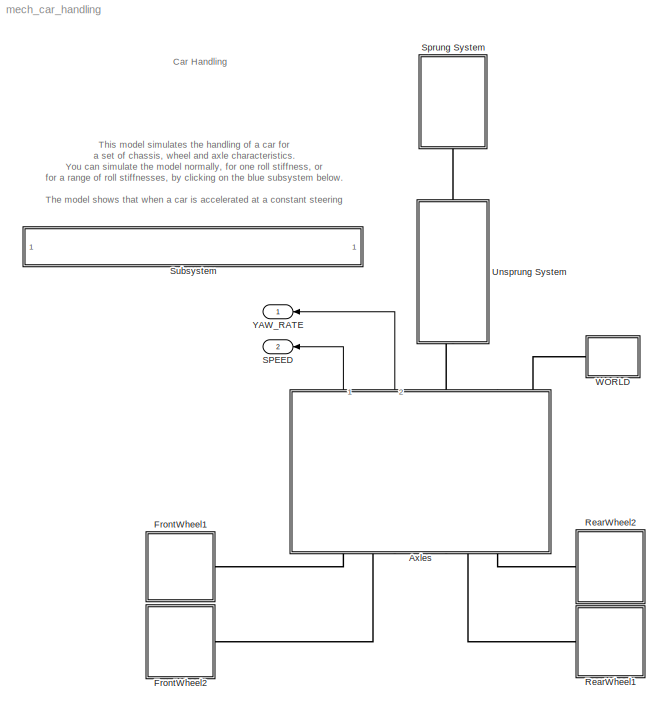
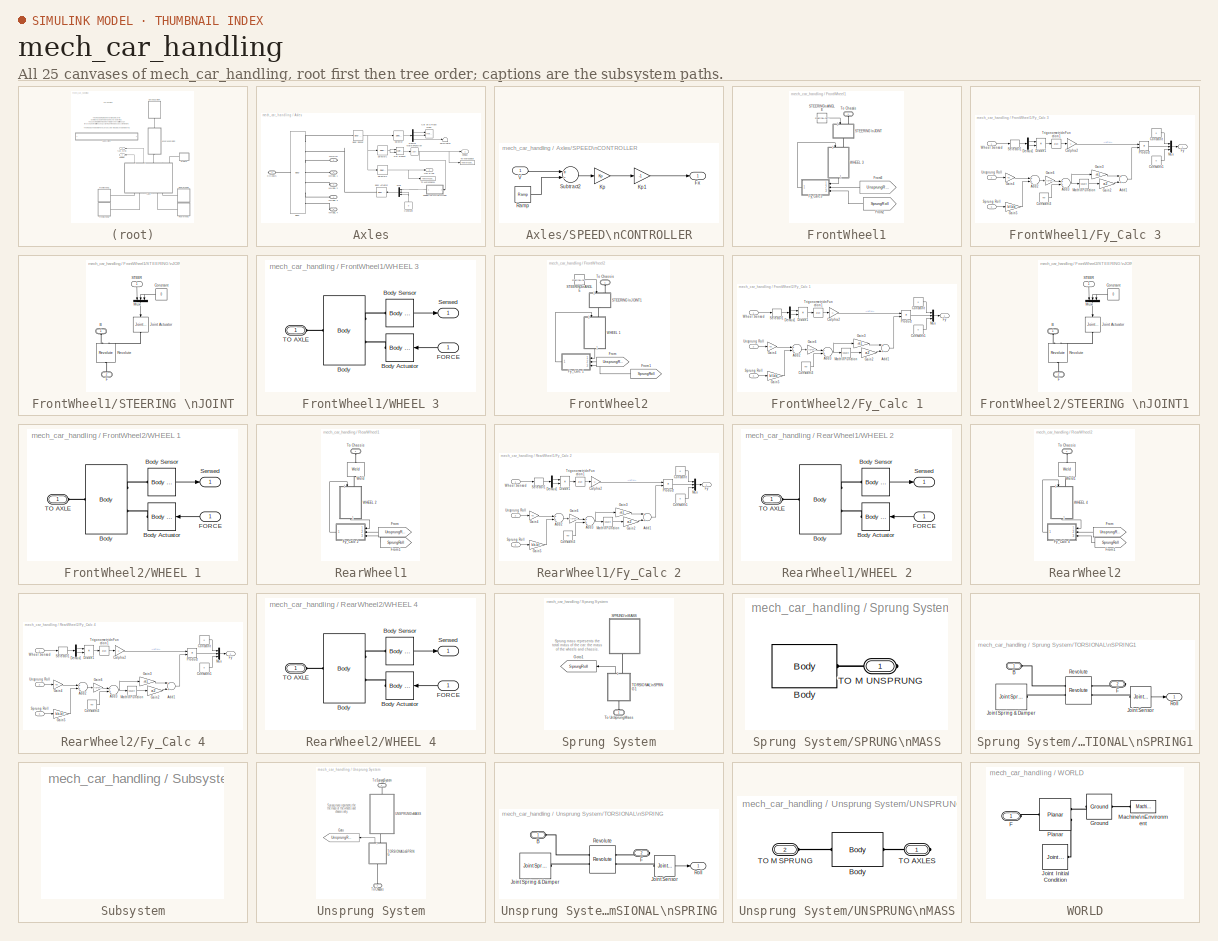
[diagram: thumbnail index - all 25 canvases of the model, root first then tree order]
MODEL mech_car_handling
KIND model
CONFIG PostLoadFcn = %%%%%%%%%%%%%%%%%%%%%%%%%%%%%%%%%%%%%%%%%%%%%%%%%%%%%%%%%%%%%%%%%%%%%%%%%%%\n% INITIALIZE VEHICLE PARAMETERS\n%%%%%%%%%%%%%%%%%%%%%%%%%%%%%%%%%%%%%%%%%%%%%%%%%%%%%%%%%%%%%%%%%%%%%%%%%%%\n%clear;\n%echo on; \n\n% INITIALIZE STRUCTURES\nchassis = struct(); \nwheel = struct(); \naxle = struct();\n\n% INITIALIZE CHASSIS PARAMETERS \nchassis.a = 1.50;          % longitudinal distance from CG to front a...<+1631ch>
CONFIG StopFcn = appDataName = 'mech_car_steering_fig_data';\nmech_car_handling_fig_mgr('init',appDataName);\n\np = size(speed.signals.values);\np = p(1);\nR = speed.signals.values([30:p])./yaw_rate.signals.values([30:p]);\nmodelFigure = getappdata(0,'mech_car_steering_fig_data');\nplot(speed.signals.values([30:p]),R,'g','Parent',modelFigure.axesH);
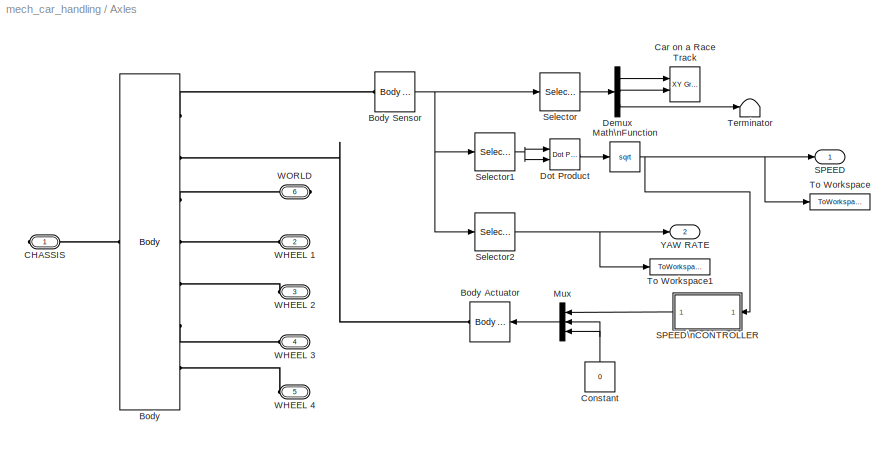
BLOCK [SubSystem] Axles
  FunctionWithSeparateData = off
  MaskCallbackString = |||
  MaskDisplay = image(imread('double_wishbone.jpg'))
  MaskEnableString = on,on,on,on
  MaskHideContents = off
  MaskIconFrame = on
  MaskIconOpaque = on
  MaskIconRotate = none
  MaskIconUnits = autoscale
  MaskPromptString = Axle Length|CG to Front Axle Distance|CG to Rear Axle Distance|Axle Mass
  MaskStyleString = edit,edit,edit,edit
  MaskTabNameString = ,,,
  MaskToolTipString = on,on,on,on
  MaskTunableValueString = on,on,on,on
  MaskValueString = chassis.w|chassis.a|chassis.b|axle.m
  MaskVarAliasString = ,,,
  MaskVariables = w=@1;a=@2;b=@3;m=@4;
  MaskVisibilityString = on,on,on,on
  MinAlgLoopOccurrences = off
  Opaque = off
  Ports = [0, 2, 0, 0, 0, 4, 2]
  PropExecContextOutsideSubsystem = off
  RTWSystemCode = Auto
  RequestExecContextInheritance = off
BLOCK [Reference] Axles/Body  REF=mblibv1/Bodies/Body
  AttachedToCS = 1
  BodyColor = [0.5 0.5 0.5]
  CG = Left$CG$[0 0 0]$CS3$CS3$m$[0 0 0]$EULER X-Y-Z$deg$WORLD$true
  CGPos = [0 0 0]
  CGRot = [0 0 0]
  CS0Pos = []
  CS0Rot = []
  CS10Pos = []
  CS10Rot = []
  CS11Pos = []
  CS11Rot = []
  CS12Pos = []
  CS12Rot = []
  CS13Pos = []
  CS13Rot = []
  CS14Pos = []
  CS14Rot = []
  CS15Pos = []
  CS15Rot = []
  CS16Pos = []
  CS16Rot = []
  CS17Pos = []
  CS17Rot = []
  CS18Pos = []
  CS18Rot = []
  CS19Pos = []
  CS19Rot = []
  CS1Pos = [a -0.5*w 0]
  CS1Rot = [0 0 0]
  CS20Pos = []
  CS20Rot = []
  CS2Pos = [a 0.5*w 0]
  CS2Rot = [0 0 0]
  CS3Pos = [0 0 0]
  CS3Rot = [0 0 0]
  CS4Pos = [-b -0.5*w 0]
  CS4Rot = [0 0 0]
  CS5Pos = [-b 0.5*w 0]
  CS5Rot = [0 0 0]
  CS6Pos = [0 0 0]
  CS6Rot = [0 0 0]
  CS7Pos = [0 0 0]
  CS7Rot = [0 0 0]
  CS8Pos = []
  CS8Rot = []
  CS9Pos = []
  CS9Rot = []
  ClassName = Body
  Density = 1
  DensityUnits = kg/m^3
  DensityUse = false
  DialogClass = MechanicalBodyBlock
  DialogController = MECH.DynMechDlgSource
  GraphicsMode = 1
  GraphicsObj = []
  Inertia = [0.12 0 0; 0 1.5 0;0 0 1.5]
  InertiaUnits = kg*m^2
  LConnTagsString = CG
  LeftPortType = workingframe
  Mass = 2*m
  MassUnits = kg
  PhysicalDomain = mechanical
  Ports = [0, 0, 0, 0, 0, 1, 7]
  RConnTagsString = CS6|CS7|CS3|CS1|CS2|CS4|CS5
  RightPortType = workingframe
  Shape = Cylinder
  ShapeDims = [1 1]
  ShapeUnits = m
  ShapeUse = false
  SourceBlock = mblibv1/Bodies/Body
  SourceType = Body
  SubClassName = Unknown
  WorkingFrames = Right$CS6$[0 0 0]$CS3$CS3$m$[0 0 0]$EULER X-Y-Z$deg$WORLD$true#Right$CS7$[0 0 0]$CS3$CS3$m$[0 0 0]$EULER X-Y-Z$deg$WORLD$true#Right$CS3$[0 0 0]$ADJOINING$ADJOINING$m$[0 0 0]$EULER X-Y-Z$deg$WORLD$true#Right$CS1$[a -0.5*w 0]$CS3$CS3$m$[0 0 0]$EULER X-Y-Z$deg$WORLD$true#Right$CS2$[a 0.5*w 0]$CS3$CS3$m$[0 0 0]$EULER X-Y-Z$deg$WORLD$true#Right$CS4$[-b -0.5*w 0]$CS3$CS3$m$[0 0 0]$EULER X-Y-Z$deg$WORLD$...<+72ch>
BLOCK [Reference] Axles/Body Actuator  REF=mblibv1/Sensors & \nActuators/Body Actuator
  AccelerationUnits = m/s^2
  ActiveIO = on
  ActuationStyle = Force
  Angle = off
  AngleUnits = deg
  ArcAccelerationUnits = deg/s^2
  ArcVelocityUnits = deg/s
  ClassName = BodyActuatorForceTorque
  CoordPosition = on
  CoordPositionUnits = m
  DialogClass = MechanicalActuatorBlock
  DialogController = MECH.DynMechDlgSource
  Force = on
  ForceUnits = N
  FunctionWithSeparateData = off
  PhysicalDomain = Mechanical
  PortType = blob
  Ports = [1, 0, 0, 0, 0, 0, 1]
  RTWMemSecDataConstants = Inherit from model
  RTWMemSecDataInternal = Inherit from model
  RTWMemSecDataParameters = Inherit from model
  RTWMemSecFuncExecute = Inherit from model
  RTWMemSecFuncInitTerm = Inherit from model
  ReferenceFrame = Local (Body CS)
  ShowPortLabels = FromPortIcon
  SourceBlock = mblibv1/Sensors & \nActuators/Body Actuator
  SourceType = Body Actuator
  SystemSampleTime = -1
  Torque = off
  TorqueUnits = N-m
  VelocityUnits = m/s
  Width = 3
BLOCK [Reference] Axles/Body Sensor  REF=mblibv1/Sensors & \nActuators/Body Sensor
  Acceleration = off
  AccelerationUnits = m/s^2
  ActiveIO = on
  Angle = on
  AngleUnits = deg
  ArcAcceleration = off
  ArcAccelerationUnits = deg/s^2
  ArcVelocity = on
  ArcVelocityUnits = rad/s
  ClassName = BodySensor
  CoordPosition = on
  CoordPositionUnits = m
  DialogClass = MechanicalSensorBlock
  DialogController = MECH.DynMechDlgSource
  FunctionWithSeparateData = off
  Muxed = on
  OutputVector = [ 3 3 3 ]
  PhysicalDomain = Mechanical
  PortType = blob
  Ports = [0, 1, 0, 0, 0, 1]
  Pose = off
  Quaternion = on
  QuaternionDDT = off
  QuaternionDT = off
  QuaternionUnits = off
  RTWMemSecDataConstants = Inherit from model
  RTWMemSecDataInternal = Inherit from model
  RTWMemSecDataParameters = Inherit from model
  RTWMemSecFuncExecute = Inherit from model
  RTWMemSecFuncInitTerm = Inherit from model
  ReferenceFrame = Absolute (World)
  ShowPortLabels = FromPortIcon
  SourceBlock = mblibv1/Sensors & \nActuators/Body Sensor
  SourceType = Body Sensor
  SystemSampleTime = -1
  Velocity = on
  VelocityUnits = m/s
  Width = 9
BLOCK [PMIOPort] Axles/CHASSIS
  Port = 1
  Side = Right
BLOCK [Reference] Axles/Car on a Race Track  REF=simulink/Sinks/XY Graph
  FunctionWithSeparateData = off
  Ports = [2]
  RTWMemSecDataConstants = Inherit from model
  RTWMemSecDataInternal = Inherit from model
  RTWMemSecDataParameters = Inherit from model
  RTWMemSecFuncExecute = Inherit from model
  RTWMemSecFuncInitTerm = Inherit from model
  ShowPortLabels = FromPortIcon
  SourceBlock = simulink/Sinks/XY Graph
  SourceType = XY scope.
  SystemSampleTime = -1
  st = -1
  xmax = 200
  xmin = -200
  ymax = 250
  ymin = -100
BLOCK [Constant] Axles/Constant
  OutDataType = sfix(16)
  OutScaling = 2^0
  Value = 0
BLOCK [Demux] Axles/Demux
  DisplayOption = bar
  Outputs = 3
  Ports = [1, 3]
BLOCK [Reference] Axles/Dot Product  REF=simulink/Math\nOperations/Dot Product
  DoSatur = off
  InputSameDT = on
  LockScale = off
  OutDataType = sfix(16)
  OutDataTypeStr = Inherit: Inherit via internal rule
  OutScaling = 2^-10
  OutputDataTypeScalingMode = Inherit via internal rule
  Ports = [2, 1]
  RndMeth = Floor
  SourceBlock = simulink/Math\nOperations/Dot Product
  SourceType = Dot Product
BLOCK [Math] Axles/Math\nFunction
  Operator = sqrt
  OutDataType = sfix(16)
  OutScaling = 2^0
  Ports = [1, 1]
BLOCK [Mux] Axles/Mux
  DisplayOption = bar
  Inputs = 3
  Ports = [3, 1]
BLOCK [Outport] Axles/SPEED
  IconDisplay = Port number
  OutDataType = sfix(16)
  OutScaling = 2^0
BLOCK [SubSystem] Axles/SPEED\nCONTROLLER
  FunctionWithSeparateData = off
  MaskHideContents = off
  MinAlgLoopOccurrences = off
  Opaque = off
  Ports = [1, 1]
  PropExecContextOutsideSubsystem = off
  RTWSystemCode = Auto
  RequestExecContextInheritance = off
BLOCK [Outport] Axles/SPEED\nCONTROLLER/Fx
  IconDisplay = Port number
  OutDataType = sfix(16)
  OutScaling = 2^0
BLOCK [Gain] Axles/SPEED\nCONTROLLER/Kp
  Gain = Kp
  OutDataType = sfix(16)
  OutDataTypeMode = Inherit via internal rule
  OutDataTypeStr = Inherit: Inherit via internal rule
  OutScaling = 2^0
  ParamDataTypeStr = Inherit: Inherit via internal rule
  ParameterDataType = sfix(16)
  ParameterDataTypeMode = Inherit via internal rule
  ParameterScaling = 2^0
  SaturateOnIntegerOverflow = off
BLOCK [Gain] Axles/SPEED\nCONTROLLER/Kp1
  Gain = -1
  OutDataType = sfix(16)
  OutDataTypeMode = Inherit via internal rule
  OutDataTypeStr = Inherit: Inherit via internal rule
  OutScaling = 2^0
  ParamDataTypeStr = Inherit: Inherit via internal rule
  ParameterDataType = sfix(16)
  ParameterDataTypeMode = Inherit via internal rule
  ParameterScaling = 2^0
  SaturateOnIntegerOverflow = off
BLOCK [Reference] Axles/SPEED\nCONTROLLER/Ramp  REF=simulink/Sources/Ramp
  FunctionWithSeparateData = off
  Ports = [0, 1]
  RTWMemSecDataConstants = Inherit from model
  RTWMemSecDataInternal = Inherit from model
  RTWMemSecDataParameters = Inherit from model
  RTWMemSecFuncExecute = Inherit from model
  RTWMemSecFuncInitTerm = Inherit from model
  ShowPortLabels = FromPortIcon
  SourceBlock = simulink/Sources/Ramp
  SourceType = Ramp
  SystemSampleTime = -1
  VectorParams1D = on
  X0 = 5
  slope = 0.1
  start = 0
BLOCK [Sum] Axles/SPEED\nCONTROLLER/Subtract2
  InputSameDT = off
  Inputs = +-
  OutDataType = sfix(16)
  OutDataTypeMode = Inherit via internal rule
  OutDataTypeStr = Inherit: Inherit via internal rule
  OutScaling = 2^-10
  Ports = [2, 1]
  SaturateOnIntegerOverflow = off
BLOCK [Inport] Axles/SPEED\nCONTROLLER/V
  IconDisplay = Port number
  OutDataType = sfix(16)
  OutScaling = 2^0
BLOCK [Selector] Axles/Selector
  IndexOptions = Index vector (dialog)
  Indices = [1 2 3]
  InputPortWidth = 9
  OutputSizes = 1
  Ports = [1, 1]
BLOCK [Selector] Axles/Selector1
  IndexOptions = Index vector (dialog)
  Indices = [4 5]
  InputPortWidth = 9
  OutputSizes = 1
  Ports = [1, 1]
BLOCK [Selector] Axles/Selector2
  IndexOptions = Index vector (dialog)
  Indices = 9
  InputPortWidth = 9
  OutputSizes = 1
  Ports = [1, 1]
BLOCK [Terminator] Axles/Terminator
BLOCK [ToWorkspace] Axles/To Workspace
  MaxDataPoints = inf
  SampleTime = -1
  SaveFormat = Structure
  VariableName = speed
BLOCK [ToWorkspace] Axles/To Workspace1
  MaxDataPoints = inf
  SampleTime = -1
  SaveFormat = Structure
  VariableName = yaw_rate
BLOCK [PMIOPort] Axles/WHEEL 1
  Port = 2
  Side = Left
BLOCK [PMIOPort] Axles/WHEEL 2
  Port = 3
  Side = Left
BLOCK [PMIOPort] Axles/WHEEL 3
  Port = 4
  Side = Left
BLOCK [PMIOPort] Axles/WHEEL 4
  Port = 5
  Side = Left
BLOCK [PMIOPort] Axles/WORLD
  Port = 6
  Side = Right
BLOCK [Outport] Axles/YAW RATE
  IconDisplay = Port number
  OutDataType = sfix(16)
  OutScaling = 2^0
  Port = 2
BLOCK [SubSystem] FrontWheel1
  FunctionWithSeparateData = off
  MaskDisplay = image(imread('wheel.jpg'))
  MaskHideContents = off
  MaskIconFrame = on
  MaskIconOpaque = on
  MaskIconRotate = none
  MaskIconUnits = autoscale
  MinAlgLoopOccurrences = off
  Opaque = off
  Ports = [0, 0, 0, 0, 0, 1]
  PropExecContextOutsideSubsystem = off
  RTWSystemCode = Auto
  RequestExecContextInheritance = off
BLOCK [From] FrontWheel1/From2
  CloseFcn = tagdialog Close
  GotoTag = SprungRoll
BLOCK [From] FrontWheel1/From3
  CloseFcn = tagdialog Close
  GotoTag = UnsprungRoll
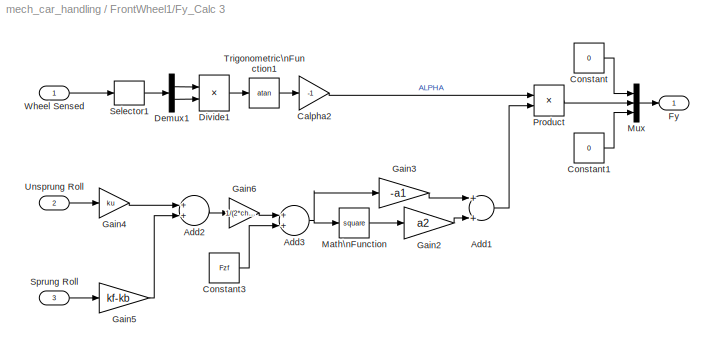
BLOCK [SubSystem] FrontWheel1/Fy_Calc 3
  FunctionWithSeparateData = off
  MaskHideContents = off
  MinAlgLoopOccurrences = off
  Opaque = off
  Ports = [3, 1]
  PropExecContextOutsideSubsystem = off
  RTWSystemCode = Auto
  RequestExecContextInheritance = off
BLOCK [Sum] FrontWheel1/Fy_Calc 3/Add1
  InputSameDT = off
  OutDataType = sfix(16)
  OutDataTypeMode = Inherit via internal rule
  OutDataTypeStr = Inherit: Inherit via internal rule
  OutScaling = 2^-10
  Ports = [2, 1]
  SaturateOnIntegerOverflow = off
BLOCK [Sum] FrontWheel1/Fy_Calc 3/Add2
  InputSameDT = off
  OutDataType = sfix(16)
  OutDataTypeMode = Inherit via internal rule
  OutDataTypeStr = Inherit: Inherit via internal rule
  OutScaling = 2^-10
  Ports = [2, 1]
  SaturateOnIntegerOverflow = off
BLOCK [Sum] FrontWheel1/Fy_Calc 3/Add3
  InputSameDT = off
  OutDataType = sfix(16)
  OutDataTypeMode = Inherit via internal rule
  OutDataTypeStr = Inherit: Inherit via internal rule
  OutScaling = 2^-10
  Ports = [2, 1]
  SaturateOnIntegerOverflow = off
BLOCK [Gain] FrontWheel1/Fy_Calc 3/Calpha2
  Gain = -1
  OutDataType = sfix(16)
  OutDataTypeMode = Inherit via internal rule
  OutDataTypeStr = Inherit: Inherit via internal rule
  OutScaling = 2^0
  ParamDataTypeStr = Inherit: Inherit via internal rule
  ParameterDataType = sfix(16)
  ParameterDataTypeMode = Inherit via internal rule
  ParameterScaling = 2^0
  SaturateOnIntegerOverflow = off
BLOCK [Constant] FrontWheel1/Fy_Calc 3/Constant
  OutDataType = sfix(16)
  OutScaling = 2^0
  Value = 0
BLOCK [Constant] FrontWheel1/Fy_Calc 3/Constant1
  OutDataType = sfix(16)
  OutScaling = 2^0
  Value = 0
BLOCK [Constant] FrontWheel1/Fy_Calc 3/Constant3
  OutDataType = sfix(16)
  OutScaling = 2^0
  Value = Fzf
BLOCK [Demux] FrontWheel1/Fy_Calc 3/Demux1
  DisplayOption = bar
  Outputs = 2
  Ports = [1, 2]
BLOCK [Product] FrontWheel1/Fy_Calc 3/Divide1
  InputSameDT = off
  Inputs = /*
  OutDataType = sfix(16)
  OutDataTypeMode = Inherit via internal rule
  OutDataTypeStr = Inherit: Inherit via internal rule
  OutScaling = 2^-10
  Ports = [2, 1]
  RndMeth = Floor
  SaturateOnIntegerOverflow = off
BLOCK [Outport] FrontWheel1/Fy_Calc 3/Fy
  IconDisplay = Port number
  OutDataType = sfix(16)
  OutScaling = 2^0
BLOCK [Gain] FrontWheel1/Fy_Calc 3/Gain2
  Gain = a2
  OutDataType = sfix(16)
  OutDataTypeMode = Inherit via internal rule
  OutDataTypeStr = Inherit: Inherit via internal rule
  OutScaling = 2^0
  ParamDataTypeStr = Inherit: Inherit via internal rule
  ParameterDataType = sfix(16)
  ParameterDataTypeMode = Inherit via internal rule
  ParameterScaling = 2^0
  SaturateOnIntegerOverflow = off
BLOCK [Gain] FrontWheel1/Fy_Calc 3/Gain3
  Gain = -a1
  OutDataType = sfix(16)
  OutDataTypeMode = Inherit via internal rule
  OutDataTypeStr = Inherit: Inherit via internal rule
  OutScaling = 2^0
  ParamDataTypeStr = Inherit: Inherit via internal rule
  ParameterDataType = sfix(16)
  ParameterDataTypeMode = Inherit via internal rule
  ParameterScaling = 2^0
  SaturateOnIntegerOverflow = off
BLOCK [Gain] FrontWheel1/Fy_Calc 3/Gain4
  Gain = ku
  OutDataType = sfix(16)
  OutDataTypeMode = Inherit via internal rule
  OutDataTypeStr = Inherit: Inherit via internal rule
  OutScaling = 2^0
  ParamDataTypeStr = Inherit: Inherit via internal rule
  ParameterDataType = sfix(16)
  ParameterDataTypeMode = Inherit via internal rule
  ParameterScaling = 2^0
  SaturateOnIntegerOverflow = off
BLOCK [Gain] FrontWheel1/Fy_Calc 3/Gain5
  Gain = kf-kb
  OutDataType = sfix(16)
  OutDataTypeMode = Inherit via internal rule
  OutDataTypeStr = Inherit: Inherit via internal rule
  OutScaling = 2^0
  ParamDataTypeStr = Inherit: Inherit via internal rule
  ParameterDataType = sfix(16)
  ParameterDataTypeMode = Inherit via internal rule
  ParameterScaling = 2^0
  SaturateOnIntegerOverflow = off
BLOCK [Gain] FrontWheel1/Fy_Calc 3/Gain6
  Gain = 1/(2*chassis.w)
  OutDataType = sfix(16)
  OutDataTypeMode = Inherit via internal rule
  OutDataTypeStr = Inherit: Inherit via internal rule
  OutScaling = 2^0
  ParamDataTypeStr = Inherit: Inherit via internal rule
  ParameterDataType = sfix(16)
  ParameterDataTypeMode = Inherit via internal rule
  ParameterScaling = 2^0
  SaturateOnIntegerOverflow = off
BLOCK [Math] FrontWheel1/Fy_Calc 3/Math\nFunction
  Operator = square
  OutDataType = sfix(16)
  OutScaling = 2^0
  Ports = [1, 1]
BLOCK [Mux] FrontWheel1/Fy_Calc 3/Mux
  DisplayOption = bar
  Inputs = 3
  Ports = [3, 1]
BLOCK [Product] FrontWheel1/Fy_Calc 3/Product
  InputSameDT = off
  OutDataType = sfix(16)
  OutDataTypeMode = Inherit via internal rule
  OutDataTypeStr = Inherit: Inherit via internal rule
  OutScaling = 2^0
  Ports = [2, 1]
  SaturateOnIntegerOverflow = off
BLOCK [Selector] FrontWheel1/Fy_Calc 3/Selector1
  IndexOptions = Index vector (dialog)
  Indices = [1 2]
  InputPortWidth = 3
  OutputSizes = 1
  Ports = [1, 1]
BLOCK [Inport] FrontWheel1/Fy_Calc 3/Sprung Roll
  IconDisplay = Port number
  OutDataType = sfix(16)
  OutScaling = 2^0
  Port = 3
BLOCK [Trigonometry] FrontWheel1/Fy_Calc 3/Trigonometric\nFunction1
  Operator = atan
  Ports = [1, 1]
BLOCK [Inport] FrontWheel1/Fy_Calc 3/Unsprung Roll
  IconDisplay = Port number
  OutDataType = sfix(16)
  OutScaling = 2^0
  Port = 2
BLOCK [Inport] FrontWheel1/Fy_Calc 3/Wheel Sensed
  IconDisplay = Port number
  OutDataType = sfix(16)
  OutScaling = 2^0
BLOCK [SubSystem] FrontWheel1/STEERING \nJOINT
  FunctionWithSeparateData = off
  MaskHideContents = off
  MinAlgLoopOccurrences = off
  Opaque = off
  Ports = [1, 0, 0, 0, 0, 1, 1]
  PropExecContextOutsideSubsystem = off
  RTWSystemCode = Auto
  RequestExecContextInheritance = off
BLOCK [PMIOPort] FrontWheel1/STEERING \nJOINT/B
  Port = 1
  Side = Left
BLOCK [Constant] FrontWheel1/STEERING \nJOINT/Constant
  OutDataType = sfix(16)
  OutScaling = 2^0
  Value = 0
BLOCK [PMIOPort] FrontWheel1/STEERING \nJOINT/F
  Port = 2
  Side = Right
BLOCK [Reference] FrontWheel1/STEERING \nJOINT/Joint Actuator  REF=mblibv1/Sensors & \nActuators/Joint Actuator
  AccelerationUnits = m/s^2
  ActiveIO = on
  ActuationStyle = Motion
  AngleUnits = deg
  ArcAccelerationUnits = deg/s^2
  ArcVelocityUnits = deg/s
  ClassName = JointActuator
  CoordPositionUnits = m
  DialogClass = MechanicalActuatorBlock
  DialogController = MECH.DynMechDlgSource
  ForceUnits = N
  FunctionWithSeparateData = off
  PhysicalDomain = Mechanical
  PortType = blob
  Ports = [1, 0, 0, 0, 0, 0, 1]
  Primitive = R1
  RTWMemSecDataConstants = Inherit from model
  RTWMemSecDataInternal = Inherit from model
  RTWMemSecDataParameters = Inherit from model
  RTWMemSecFuncExecute = Inherit from model
  RTWMemSecFuncInitTerm = Inherit from model
  ReferenceFrame = Absolute (INERTIAL)
  ShowPortLabels = FromPortIcon
  SourceBlock = mblibv1/Sensors & \nActuators/Joint Actuator
  SourceType = Joint Actuator
  SystemSampleTime = -1
  TorqueUnits = N-m
  VelocityUnits = m/s
  Width = 3
BLOCK [Mux] FrontWheel1/STEERING \nJOINT/Mux
  DisplayOption = bar
  Inputs = 3
  Ports = [3, 1]
BLOCK [Reference] FrontWheel1/STEERING \nJOINT/Revolute  REF=mblibv1/Joints/Revolute
  ClassName = Joint
  CutJoint = off
  DialogClass = JointBlock
  DialogController = MECH.DynMechDlgSource
  LConnTagsString = __newl0|SA1
  LeftPortType = blob
  MarkAsCut = off
  NumSAPorts = 1
  PhysicalDomain = mechanical
  Ports = [0, 0, 0, 0, 0, 2, 1]
  PrimitiveProps = R1$WORLD$[0 0 1]$revolute
  Primitives = revolute
  R1Axis = [0 0 1]
  RConnTagsString = __newr0
  RightPortType = blob
  SourceBlock = mblibv1/Joints/Revolute
  SourceType = Revolute
  SubClassName = Unknown
BLOCK [Inport] FrontWheel1/STEERING \nJOINT/STEER
  IconDisplay = Port number
  OutDataType = sfix(16)
  OutScaling = 2^0
BLOCK [Constant] FrontWheel1/STEERING\nANGLE
  OutDataType = sfix(16)
  OutScaling = 2^0
  Value = steeringAngle
BLOCK [PMIOPort] FrontWheel1/To Chassis
  Port = 1
  Side = Left
BLOCK [SubSystem] FrontWheel1/WHEEL 3
  FunctionWithSeparateData = off
  MaskCallbackString = ||
  MaskEnableString = on,on,on
  MaskHideContents = off
  MaskIconFrame = on
  MaskIconOpaque = on
  MaskIconRotate = none
  MaskIconUnits = autoscale
  MaskPromptString = Wheel Radius|Wheel Mass|Wheel Inertia
  MaskStyleString = edit,edit,edit
  MaskTabNameString = ,,
  MaskToolTipString = on,on,on
  MaskTunableValueString = on,on,on
  MaskValueString = wheel.r|wheel.m|wheel.I
  MaskVarAliasString = ,,
  MaskVariables = r=@1;m=@2;I=@3;
  MaskVisibilityString = on,on,on
  MinAlgLoopOccurrences = off
  Opaque = off
  Ports = [1, 1, 0, 0, 0, 1]
  PropExecContextOutsideSubsystem = off
  RTWSystemCode = Auto
  RequestExecContextInheritance = off
BLOCK [Reference] FrontWheel1/WHEEL 3/Body  REF=mblibv1/Bodies/Body
  AttachedToCS = 1
  BodyColor = [0.5 0.5 0.5]
  CG = Left$CG$[0 0 0]$ADJOINING$ADJOINING$m$[0 0 0]$EULER X-Y-Z$deg$WORLD$true
  CGPos = [0 0 0]
  CGRot = [0 0 0]
  CS0Pos = []
  CS0Rot = []
  CS10Pos = []
  CS10Rot = []
  CS11Pos = []
  CS11Rot = []
  CS12Pos = []
  CS12Rot = []
  CS13Pos = []
  CS13Rot = []
  CS14Pos = []
  CS14Rot = []
  CS15Pos = []
  CS15Rot = []
  CS16Pos = []
  CS16Rot = []
  CS17Pos = []
  CS17Rot = []
  CS18Pos = []
  CS18Rot = []
  CS19Pos = []
  CS19Rot = []
  CS1Pos = [0 0 -r]
  CS1Rot = [0 0 0]
  CS20Pos = []
  CS20Rot = []
  CS2Pos = [0 0 -r]
  CS2Rot = [0 0 0]
  CS3Pos = [0 0 -r]
  CS3Rot = [0 0 0]
  CS4Pos = []
  CS4Rot = []
  CS5Pos = []
  CS5Rot = []
  CS6Pos = []
  CS6Rot = []
  CS7Pos = []
  CS7Rot = []
  CS8Pos = []
  CS8Rot = []
  CS9Pos = []
  CS9Rot = []
  ClassName = Body
  Density = 1
  DensityUnits = kg/m^3
  DensityUse = false
  DialogClass = MechanicalBodyBlock
  DialogController = MECH.DynMechDlgSource
  GraphicsMode = 1
  GraphicsObj = []
  Inertia = I
  InertiaUnits = kg*m^2
  LConnTagsString = CG
  LeftPortType = workingframe
  Mass = m
  MassUnits = kg
  PhysicalDomain = mechanical
  Ports = [0, 0, 0, 0, 0, 1, 2]
  RConnTagsString = CS2|CS3
  RightPortType = workingframe
  Shape = Cylinder
  ShapeDims = [1 1]
  ShapeUnits = m
  ShapeUse = false
  SourceBlock = mblibv1/Bodies/Body
  SourceType = Body
  SubClassName = Unknown
  WorkingFrames = Right$CS2$[0 0 -r]$CG$CG$m$[0 0 0]$EULER X-Y-Z$deg$WORLD$true#Left$CS1$[0 0 -r]$CG$CG$m$[0 0 0]$EULER X-Y-Z$deg$WORLD$false#Right$CS3$[0 0 -r]$CG$CG$m$[0 0 0]$EULER X-Y-Z$deg$WORLD$true  <repeated x4 — deduplicated; at blocks: Body>
BLOCK [Reference] FrontWheel1/WHEEL 3/Body Actuator  REF=mblibv1/Sensors & \nActuators/Body Actuator
  AccelerationUnits = m/s^2
  ActiveIO = on
  ActuationStyle = Force
  Angle = off
  AngleUnits = deg
  ArcAccelerationUnits = deg/s^2
  ArcVelocityUnits = deg/s
  ClassName = BodyActuatorForceTorque
  CoordPosition = on
  CoordPositionUnits = m
  DialogClass = MechanicalActuatorBlock
  DialogController = MECH.DynMechDlgSource
  Force = on
  ForceUnits = N
  FunctionWithSeparateData = off
  PhysicalDomain = Mechanical
  PortType = blob
  Ports = [1, 0, 0, 0, 0, 0, 1]
  RTWMemSecDataConstants = Inherit from model
  RTWMemSecDataInternal = Inherit from model
  RTWMemSecDataParameters = Inherit from model
  RTWMemSecFuncExecute = Inherit from model
  RTWMemSecFuncInitTerm = Inherit from model
  ReferenceFrame = Local (Body CS)
  ShowPortLabels = FromPortIcon
  SourceBlock = mblibv1/Sensors & \nActuators/Body Actuator
  SourceType = Body Actuator
  SystemSampleTime = -1
  Torque = off
  TorqueUnits = N-m
  VelocityUnits = m/s
  Width = 3
BLOCK [Reference] FrontWheel1/WHEEL 3/Body Sensor  REF=mblibv1/Sensors & \nActuators/Body Sensor
  Acceleration = off
  AccelerationUnits = m/s^2
  ActiveIO = on
  Angle = on
  AngleUnits = deg
  ArcAcceleration = off
  ArcAccelerationUnits = deg/s^2
  ArcVelocity = off
  ArcVelocityUnits = deg/s
  ClassName = BodySensor
  CoordPosition = off
  CoordPositionUnits = m
  DialogClass = MechanicalSensorBlock
  DialogController = MECH.DynMechDlgSource
  FunctionWithSeparateData = off
  Muxed = on
  OutputVector = [ 3 ]
  PhysicalDomain = Mechanical
  PortType = blob
  Ports = [0, 1, 0, 0, 0, 1]
  Pose = off
  Quaternion = on
  QuaternionDDT = off
  QuaternionDT = off
  QuaternionUnits = off
  RTWMemSecDataConstants = Inherit from model
  RTWMemSecDataInternal = Inherit from model
  RTWMemSecDataParameters = Inherit from model
  RTWMemSecFuncExecute = Inherit from model
  RTWMemSecFuncInitTerm = Inherit from model
  ReferenceFrame = Local (Body CS)
  ShowPortLabels = FromPortIcon
  SourceBlock = mblibv1/Sensors & \nActuators/Body Sensor
  SourceType = Body Sensor
  SystemSampleTime = -1
  Velocity = on
  VelocityUnits = m/s
  Width = 3
BLOCK [Inport] FrontWheel1/WHEEL 3/FORCE
  IconDisplay = Port number
  OutDataType = sfix(16)
  OutScaling = 2^0
BLOCK [Outport] FrontWheel1/WHEEL 3/Sensed
  IconDisplay = Port number
  OutDataType = sfix(16)
  OutScaling = 2^0
BLOCK [PMIOPort] FrontWheel1/WHEEL 3/TO AXLE
  Port = 1
  Side = Left
BLOCK [SubSystem] FrontWheel2
  FunctionWithSeparateData = off
  MaskDisplay = image(imread('wheel.jpg'))
  MaskHideContents = off
  MaskIconFrame = on
  MaskIconOpaque = on
  MaskIconRotate = none
  MaskIconUnits = autoscale
  MinAlgLoopOccurrences = off
  Opaque = off
  Ports = [0, 0, 0, 0, 0, 1]
  PropExecContextOutsideSubsystem = off
  RTWSystemCode = Auto
  RequestExecContextInheritance = off
BLOCK [From] FrontWheel2/From
  CloseFcn = tagdialog Close
  GotoTag = UnsprungRoll
BLOCK [From] FrontWheel2/From1
  CloseFcn = tagdialog Close
  GotoTag = SprungRoll
BLOCK [SubSystem] FrontWheel2/Fy_Calc 1
  FunctionWithSeparateData = off
  MaskHideContents = off
  MinAlgLoopOccurrences = off
  Opaque = off
  Ports = [3, 1]
  PropExecContextOutsideSubsystem = off
  RTWSystemCode = Auto
  RequestExecContextInheritance = off
BLOCK [Sum] FrontWheel2/Fy_Calc 1/Add1
  InputSameDT = off
  OutDataType = sfix(16)
  OutDataTypeMode = Inherit via internal rule
  OutDataTypeStr = Inherit: Inherit via internal rule
  OutScaling = 2^-10
  Ports = [2, 1]
  SaturateOnIntegerOverflow = off
BLOCK [Sum] FrontWheel2/Fy_Calc 1/Add2
  InputSameDT = off
  OutDataType = sfix(16)
  OutDataTypeMode = Inherit via internal rule
  OutDataTypeStr = Inherit: Inherit via internal rule
  OutScaling = 2^-10
  Ports = [2, 1]
  SaturateOnIntegerOverflow = off
BLOCK [Sum] FrontWheel2/Fy_Calc 1/Add3
  InputSameDT = off
  Inputs = -+
  OutDataType = sfix(16)
  OutDataTypeMode = Inherit via internal rule
  OutDataTypeStr = Inherit: Inherit via internal rule
  OutScaling = 2^-10
  Ports = [2, 1]
  SaturateOnIntegerOverflow = off
BLOCK [Gain] FrontWheel2/Fy_Calc 1/Calpha2
  Gain = -1
  OutDataType = sfix(16)
  OutDataTypeMode = Inherit via internal rule
  OutDataTypeStr = Inherit: Inherit via internal rule
  OutScaling = 2^0
  ParamDataTypeStr = Inherit: Inherit via internal rule
  ParameterDataType = sfix(16)
  ParameterDataTypeMode = Inherit via internal rule
  ParameterScaling = 2^0
  SaturateOnIntegerOverflow = off
BLOCK [Constant] FrontWheel2/Fy_Calc 1/Constant
  OutDataType = sfix(16)
  OutScaling = 2^0
  Value = 0
BLOCK [Constant] FrontWheel2/Fy_Calc 1/Constant1
  OutDataType = sfix(16)
  OutScaling = 2^0
  Value = 0
BLOCK [Constant] FrontWheel2/Fy_Calc 1/Constant3
  OutDataType = sfix(16)
  OutScaling = 2^0
  Value = Fzf
BLOCK [Demux] FrontWheel2/Fy_Calc 1/Demux1
  DisplayOption = bar
  Outputs = 2
  Ports = [1, 2]
BLOCK [Product] FrontWheel2/Fy_Calc 1/Divide1
  InputSameDT = off
  Inputs = /*
  OutDataType = sfix(16)
  OutDataTypeMode = Inherit via internal rule
  OutDataTypeStr = Inherit: Inherit via internal rule
  OutScaling = 2^-10
  Ports = [2, 1]
  RndMeth = Floor
  SaturateOnIntegerOverflow = off
BLOCK [Outport] FrontWheel2/Fy_Calc 1/Fy
  IconDisplay = Port number
  OutDataType = sfix(16)
  OutScaling = 2^0
BLOCK [Gain] FrontWheel2/Fy_Calc 1/Gain2
  Gain = a2
  OutDataType = sfix(16)
  OutDataTypeMode = Inherit via internal rule
  OutDataTypeStr = Inherit: Inherit via internal rule
  OutScaling = 2^0
  ParamDataTypeStr = Inherit: Inherit via internal rule
  ParameterDataType = sfix(16)
  ParameterDataTypeMode = Inherit via internal rule
  ParameterScaling = 2^0
  SaturateOnIntegerOverflow = off
BLOCK [Gain] FrontWheel2/Fy_Calc 1/Gain3
  Gain = -a1
  OutDataType = sfix(16)
  OutDataTypeMode = Inherit via internal rule
  OutDataTypeStr = Inherit: Inherit via internal rule
  OutScaling = 2^0
  ParamDataTypeStr = Inherit: Inherit via internal rule
  ParameterDataType = sfix(16)
  ParameterDataTypeMode = Inherit via internal rule
  ParameterScaling = 2^0
  SaturateOnIntegerOverflow = off
BLOCK [Gain] FrontWheel2/Fy_Calc 1/Gain4
  Gain = ku
  OutDataType = sfix(16)
  OutDataTypeMode = Inherit via internal rule
  OutDataTypeStr = Inherit: Inherit via internal rule
  OutScaling = 2^0
  ParamDataTypeStr = Inherit: Inherit via internal rule
  ParameterDataType = sfix(16)
  ParameterDataTypeMode = Inherit via internal rule
  ParameterScaling = 2^0
  SaturateOnIntegerOverflow = off
BLOCK [Gain] FrontWheel2/Fy_Calc 1/Gain5
  Gain = kf-kb
  OutDataType = sfix(16)
  OutDataTypeMode = Inherit via internal rule
  OutDataTypeStr = Inherit: Inherit via internal rule
  OutScaling = 2^0
  ParamDataTypeStr = Inherit: Inherit via internal rule
  ParameterDataType = sfix(16)
  ParameterDataTypeMode = Inherit via internal rule
  ParameterScaling = 2^0
  SaturateOnIntegerOverflow = off
BLOCK [Gain] FrontWheel2/Fy_Calc 1/Gain6
  Gain = 1/(2*chassis.w)
  OutDataType = sfix(16)
  OutDataTypeMode = Inherit via internal rule
  OutDataTypeStr = Inherit: Inherit via internal rule
  OutScaling = 2^0
  ParamDataTypeStr = Inherit: Inherit via internal rule
  ParameterDataType = sfix(16)
  ParameterDataTypeMode = Inherit via internal rule
  ParameterScaling = 2^0
  SaturateOnIntegerOverflow = off
BLOCK [Math] FrontWheel2/Fy_Calc 1/Math\nFunction
  Operator = square
  OutDataType = sfix(16)
  OutScaling = 2^0
  Ports = [1, 1]
BLOCK [Mux] FrontWheel2/Fy_Calc 1/Mux
  DisplayOption = bar
  Inputs = 3
  Ports = [3, 1]
BLOCK [Product] FrontWheel2/Fy_Calc 1/Product
  InputSameDT = off
  OutDataType = sfix(16)
  OutDataTypeMode = Inherit via internal rule
  OutDataTypeStr = Inherit: Inherit via internal rule
  OutScaling = 2^0
  Ports = [2, 1]
  SaturateOnIntegerOverflow = off
BLOCK [Selector] FrontWheel2/Fy_Calc 1/Selector1
  IndexOptions = Index vector (dialog)
  Indices = [1 2]
  InputPortWidth = 3
  OutputSizes = 1
  Ports = [1, 1]
BLOCK [Inport] FrontWheel2/Fy_Calc 1/Sprung Roll
  IconDisplay = Port number
  OutDataType = sfix(16)
  OutScaling = 2^0
  Port = 3
BLOCK [Trigonometry] FrontWheel2/Fy_Calc 1/Trigonometric\nFunction1
  Operator = atan
  Ports = [1, 1]
BLOCK [Inport] FrontWheel2/Fy_Calc 1/Unsprung Roll
  IconDisplay = Port number
  OutDataType = sfix(16)
  OutScaling = 2^0
  Port = 2
BLOCK [Inport] FrontWheel2/Fy_Calc 1/Wheel Sensed
  IconDisplay = Port number
  OutDataType = sfix(16)
  OutScaling = 2^0
BLOCK [SubSystem] FrontWheel2/STEERING \nJOINT1
  FunctionWithSeparateData = off
  MaskHideContents = off
  MinAlgLoopOccurrences = off
  Opaque = off
  Ports = [1, 0, 0, 0, 0, 1, 1]
  PropExecContextOutsideSubsystem = off
  RTWSystemCode = Auto
  RequestExecContextInheritance = off
BLOCK [PMIOPort] FrontWheel2/STEERING \nJOINT1/B
  Port = 1
  Side = Left
BLOCK [Constant] FrontWheel2/STEERING \nJOINT1/Constant
  OutDataType = sfix(16)
  OutScaling = 2^0
  Value = 0
BLOCK [PMIOPort] FrontWheel2/STEERING \nJOINT1/F
  Port = 2
  Side = Right
BLOCK [Reference] FrontWheel2/STEERING \nJOINT1/Joint Actuator  REF=mblibv1/Sensors & \nActuators/Joint Actuator
  AccelerationUnits = m/s^2
  ActiveIO = on
  ActuationStyle = Motion
  AngleUnits = deg
  ArcAccelerationUnits = deg/s^2
  ArcVelocityUnits = deg/s
  ClassName = JointActuator
  CoordPositionUnits = m
  DialogClass = MechanicalActuatorBlock
  DialogController = MECH.DynMechDlgSource
  ForceUnits = N
  FunctionWithSeparateData = off
  PhysicalDomain = Mechanical
  PortType = blob
  Ports = [1, 0, 0, 0, 0, 0, 1]
  Primitive = R1
  RTWMemSecDataConstants = Inherit from model
  RTWMemSecDataInternal = Inherit from model
  RTWMemSecDataParameters = Inherit from model
  RTWMemSecFuncExecute = Inherit from model
  RTWMemSecFuncInitTerm = Inherit from model
  ReferenceFrame = Absolute (INERTIAL)
  ShowPortLabels = FromPortIcon
  SourceBlock = mblibv1/Sensors & \nActuators/Joint Actuator
  SourceType = Joint Actuator
  SystemSampleTime = -1
  TorqueUnits = N-m
  VelocityUnits = m/s
  Width = 3
BLOCK [Mux] FrontWheel2/STEERING \nJOINT1/Mux
  DisplayOption = bar
  Inputs = 3
  Ports = [3, 1]
BLOCK [Reference] FrontWheel2/STEERING \nJOINT1/Revolute  REF=mblibv1/Joints/Revolute
  ClassName = Joint
  CutJoint = off
  DialogClass = JointBlock
  DialogController = MECH.DynMechDlgSource
  LConnTagsString = __newl0|SA1
  LeftPortType = blob
  MarkAsCut = off
  NumSAPorts = 1
  PhysicalDomain = mechanical
  Ports = [0, 0, 0, 0, 0, 2, 1]
  PrimitiveProps = R1$WORLD$[0 0 1]$revolute
  Primitives = revolute
  R1Axis = [0 0 1]
  RConnTagsString = __newr0
  RightPortType = blob
  SourceBlock = mblibv1/Joints/Revolute
  SourceType = Revolute
  SubClassName = Unknown
BLOCK [Inport] FrontWheel2/STEERING \nJOINT1/STEER
  IconDisplay = Port number
  OutDataType = sfix(16)
  OutScaling = 2^0
BLOCK [Constant] FrontWheel2/STEERING\nANGLE
  OutDataType = sfix(16)
  OutScaling = 2^0
  Value = steeringAngle
BLOCK [PMIOPort] FrontWheel2/To Chassis
  Port = 1
  Side = Left
BLOCK [SubSystem] FrontWheel2/WHEEL 1
  FunctionWithSeparateData = off
  MaskCallbackString = ||
  MaskEnableString = on,on,on
  MaskHideContents = off
  MaskIconFrame = on
  MaskIconOpaque = on
  MaskIconRotate = none
  MaskIconUnits = autoscale
  MaskPromptString = Wheel Radius|Wheel Mass|Wheel Inertia
  MaskStyleString = edit,edit,edit
  MaskTabNameString = ,,
  MaskToolTipString = on,on,on
  MaskTunableValueString = on,on,on
  MaskValueString = wheel.r|wheel.m|wheel.I
  MaskVarAliasString = ,,
  MaskVariables = r=@1;m=@2;I=@3;
  MaskVisibilityString = on,on,on
  MinAlgLoopOccurrences = off
  Opaque = off
  Ports = [1, 1, 0, 0, 0, 1]
  PropExecContextOutsideSubsystem = off
  RTWSystemCode = Auto
  RequestExecContextInheritance = off
BLOCK [Reference] FrontWheel2/WHEEL 1/Body  REF=mblibv1/Bodies/Body
  AttachedToCS = 1
  BodyColor = [0.5 0.5 0.5]
  CG = Left$CG$[0 0 0]$ADJOINING$ADJOINING$m$[0 0 0]$EULER X-Y-Z$deg$WORLD$true
  CGPos = [0 0 0]
  CGRot = [0 0 0]
  CS0Pos = []
  CS0Rot = []
  CS10Pos = []
  CS10Rot = []
  CS11Pos = []
  CS11Rot = []
  CS12Pos = []
  CS12Rot = []
  CS13Pos = []
  CS13Rot = []
  CS14Pos = []
  CS14Rot = []
  CS15Pos = []
  CS15Rot = []
  CS16Pos = []
  CS16Rot = []
  CS17Pos = []
  CS17Rot = []
  CS18Pos = []
  CS18Rot = []
  CS19Pos = []
  CS19Rot = []
  CS1Pos = [0 0 -r]
  CS1Rot = [0 0 0]
  CS20Pos = []
  CS20Rot = []
  CS2Pos = [0 0 -r]
  CS2Rot = [0 0 0]
  CS3Pos = [0 0 -r]
  CS3Rot = [0 0 0]
  CS4Pos = []
  CS4Rot = []
  CS5Pos = []
  CS5Rot = []
  CS6Pos = []
  CS6Rot = []
  CS7Pos = []
  CS7Rot = []
  CS8Pos = []
  CS8Rot = []
  CS9Pos = []
  CS9Rot = []
  ClassName = Body
  Density = 1
  DensityUnits = kg/m^3
  DensityUse = false
  DialogClass = MechanicalBodyBlock
  DialogController = MECH.DynMechDlgSource
  GraphicsMode = 1
  GraphicsObj = []
  Inertia = I
  InertiaUnits = kg*m^2
  LConnTagsString = CG
  LeftPortType = workingframe
  Mass = m
  MassUnits = kg
  PhysicalDomain = mechanical
  Ports = [0, 0, 0, 0, 0, 1, 2]
  RConnTagsString = CS2|CS3
  RightPortType = workingframe
  Shape = Cylinder
  ShapeDims = [1 1]
  ShapeUnits = m
  ShapeUse = false
  SourceBlock = mblibv1/Bodies/Body
  SourceType = Body
  SubClassName = Unknown
BLOCK [Reference] FrontWheel2/WHEEL 1/Body Actuator  REF=mblibv1/Sensors & \nActuators/Body Actuator
  AccelerationUnits = m/s^2
  ActiveIO = on
  ActuationStyle = Force
  Angle = off
  AngleUnits = deg
  ArcAccelerationUnits = deg/s^2
  ArcVelocityUnits = deg/s
  ClassName = BodyActuatorForceTorque
  CoordPosition = on
  CoordPositionUnits = m
  DialogClass = MechanicalActuatorBlock
  DialogController = MECH.DynMechDlgSource
  Force = on
  ForceUnits = N
  FunctionWithSeparateData = off
  PhysicalDomain = Mechanical
  PortType = blob
  Ports = [1, 0, 0, 0, 0, 0, 1]
  RTWMemSecDataConstants = Inherit from model
  RTWMemSecDataInternal = Inherit from model
  RTWMemSecDataParameters = Inherit from model
  RTWMemSecFuncExecute = Inherit from model
  RTWMemSecFuncInitTerm = Inherit from model
  ReferenceFrame = Local (Body CS)
  ShowPortLabels = FromPortIcon
  SourceBlock = mblibv1/Sensors & \nActuators/Body Actuator
  SourceType = Body Actuator
  SystemSampleTime = -1
  Torque = off
  TorqueUnits = N-m
  VelocityUnits = m/s
  Width = 3
BLOCK [Reference] FrontWheel2/WHEEL 1/Body Sensor  REF=mblibv1/Sensors & \nActuators/Body Sensor
  Acceleration = off
  AccelerationUnits = m/s^2
  ActiveIO = on
  Angle = on
  AngleUnits = deg
  ArcAcceleration = off
  ArcAccelerationUnits = deg/s^2
  ArcVelocity = off
  ArcVelocityUnits = deg/s
  ClassName = BodySensor
  CoordPosition = off
  CoordPositionUnits = m
  DialogClass = MechanicalSensorBlock
  DialogController = MECH.DynMechDlgSource
  FunctionWithSeparateData = off
  Muxed = on
  OutputVector = [ 3 ]
  PhysicalDomain = Mechanical
  PortType = blob
  Ports = [0, 1, 0, 0, 0, 1]
  Pose = off
  Quaternion = on
  QuaternionDDT = off
  QuaternionDT = off
  QuaternionUnits = off
  RTWMemSecDataConstants = Inherit from model
  RTWMemSecDataInternal = Inherit from model
  RTWMemSecDataParameters = Inherit from model
  RTWMemSecFuncExecute = Inherit from model
  RTWMemSecFuncInitTerm = Inherit from model
  ReferenceFrame = Local (Body CS)
  ShowPortLabels = FromPortIcon
  SourceBlock = mblibv1/Sensors & \nActuators/Body Sensor
  SourceType = Body Sensor
  SystemSampleTime = -1
  Velocity = on
  VelocityUnits = m/s
  Width = 3
BLOCK [Inport] FrontWheel2/WHEEL 1/FORCE
  IconDisplay = Port number
  OutDataType = sfix(16)
  OutScaling = 2^0
BLOCK [Outport] FrontWheel2/WHEEL 1/Sensed
  IconDisplay = Port number
  OutDataType = sfix(16)
  OutScaling = 2^0
BLOCK [PMIOPort] FrontWheel2/WHEEL 1/TO AXLE
  Port = 1
  Side = Left
BLOCK [SubSystem] RearWheel1
  FunctionWithSeparateData = off
  MaskDisplay = image(imread('wheel.jpg'))
  MaskHideContents = off
  MaskIconFrame = on
  MaskIconOpaque = on
  MaskIconRotate = none
  MaskIconUnits = autoscale
  MinAlgLoopOccurrences = off
  Opaque = off
  Ports = [0, 0, 0, 0, 0, 1]
  PropExecContextOutsideSubsystem = off
  RTWSystemCode = Auto
  RequestExecContextInheritance = off
BLOCK [From] RearWheel1/From
  CloseFcn = tagdialog Close
  GotoTag = UnsprungRoll
BLOCK [From] RearWheel1/From1
  CloseFcn = tagdialog Close
  GotoTag = SprungRoll
BLOCK [SubSystem] RearWheel1/Fy_Calc 2
  FunctionWithSeparateData = off
  MaskHideContents = off
  MinAlgLoopOccurrences = off
  Opaque = off
  Ports = [3, 1]
  PropExecContextOutsideSubsystem = off
  RTWSystemCode = Auto
  RequestExecContextInheritance = off
BLOCK [Sum] RearWheel1/Fy_Calc 2/Add1
  InputSameDT = off
  OutDataType = sfix(16)
  OutDataTypeMode = Inherit via internal rule
  OutDataTypeStr = Inherit: Inherit via internal rule
  OutScaling = 2^-10
  Ports = [2, 1]
  SaturateOnIntegerOverflow = off
BLOCK [Sum] RearWheel1/Fy_Calc 2/Add2
  InputSameDT = off
  OutDataType = sfix(16)
  OutDataTypeMode = Inherit via internal rule
  OutDataTypeStr = Inherit: Inherit via internal rule
  OutScaling = 2^-10
  Ports = [2, 1]
  SaturateOnIntegerOverflow = off
BLOCK [Sum] RearWheel1/Fy_Calc 2/Add3
  InputSameDT = off
  OutDataType = sfix(16)
  OutDataTypeMode = Inherit via internal rule
  OutDataTypeStr = Inherit: Inherit via internal rule
  OutScaling = 2^-10
  Ports = [2, 1]
  SaturateOnIntegerOverflow = off
BLOCK [Gain] RearWheel1/Fy_Calc 2/Calpha2
  Gain = -1
  OutDataType = sfix(16)
  OutDataTypeMode = Inherit via internal rule
  OutDataTypeStr = Inherit: Inherit via internal rule
  OutScaling = 2^0
  ParamDataTypeStr = Inherit: Inherit via internal rule
  ParameterDataType = sfix(16)
  ParameterDataTypeMode = Inherit via internal rule
  ParameterScaling = 2^0
  SaturateOnIntegerOverflow = off
BLOCK [Constant] RearWheel1/Fy_Calc 2/Constant
  OutDataType = sfix(16)
  OutScaling = 2^0
  Value = 0
BLOCK [Constant] RearWheel1/Fy_Calc 2/Constant1
  OutDataType = sfix(16)
  OutScaling = 2^0
  Value = 0
BLOCK [Constant] RearWheel1/Fy_Calc 2/Constant3
  OutDataType = sfix(16)
  OutScaling = 2^0
  Value = Fzr
BLOCK [Demux] RearWheel1/Fy_Calc 2/Demux1
  DisplayOption = bar
  Outputs = 2
  Ports = [1, 2]
BLOCK [Product] RearWheel1/Fy_Calc 2/Divide1
  InputSameDT = off
  Inputs = /*
  OutDataType = sfix(16)
  OutDataTypeMode = Inherit via internal rule
  OutDataTypeStr = Inherit: Inherit via internal rule
  OutScaling = 2^-10
  Ports = [2, 1]
  RndMeth = Floor
  SaturateOnIntegerOverflow = off
BLOCK [Outport] RearWheel1/Fy_Calc 2/Fy
  IconDisplay = Port number
  OutDataType = sfix(16)
  OutScaling = 2^0
BLOCK [Gain] RearWheel1/Fy_Calc 2/Gain2
  Gain = a2
  OutDataType = sfix(16)
  OutDataTypeMode = Inherit via internal rule
  OutDataTypeStr = Inherit: Inherit via internal rule
  OutScaling = 2^0
  ParamDataTypeStr = Inherit: Inherit via internal rule
  ParameterDataType = sfix(16)
  ParameterDataTypeMode = Inherit via internal rule
  ParameterScaling = 2^0
  SaturateOnIntegerOverflow = off
BLOCK [Gain] RearWheel1/Fy_Calc 2/Gain3
  Gain = -a1
  OutDataType = sfix(16)
  OutDataTypeMode = Inherit via internal rule
  OutDataTypeStr = Inherit: Inherit via internal rule
  OutScaling = 2^0
  ParamDataTypeStr = Inherit: Inherit via internal rule
  ParameterDataType = sfix(16)
  ParameterDataTypeMode = Inherit via internal rule
  ParameterScaling = 2^0
  SaturateOnIntegerOverflow = off
BLOCK [Gain] RearWheel1/Fy_Calc 2/Gain4
  Gain = ku
  OutDataType = sfix(16)
  OutDataTypeMode = Inherit via internal rule
  OutDataTypeStr = Inherit: Inherit via internal rule
  OutScaling = 2^0
  ParamDataTypeStr = Inherit: Inherit via internal rule
  ParameterDataType = sfix(16)
  ParameterDataTypeMode = Inherit via internal rule
  ParameterScaling = 2^0
  SaturateOnIntegerOverflow = off
BLOCK [Gain] RearWheel1/Fy_Calc 2/Gain5
  Gain = kb-kf
  OutDataType = sfix(16)
  OutDataTypeMode = Inherit via internal rule
  OutDataTypeStr = Inherit: Inherit via internal rule
  OutScaling = 2^0
  ParamDataTypeStr = Inherit: Inherit via internal rule
  ParameterDataType = sfix(16)
  ParameterDataTypeMode = Inherit via internal rule
  ParameterScaling = 2^0
  SaturateOnIntegerOverflow = off
BLOCK [Gain] RearWheel1/Fy_Calc 2/Gain6
  Gain = 1/(2*chassis.w)
  OutDataType = sfix(16)
  OutDataTypeMode = Inherit via internal rule
  OutDataTypeStr = Inherit: Inherit via internal rule
  OutScaling = 2^0
  ParamDataTypeStr = Inherit: Inherit via internal rule
  ParameterDataType = sfix(16)
  ParameterDataTypeMode = Inherit via internal rule
  ParameterScaling = 2^0
  SaturateOnIntegerOverflow = off
BLOCK [Math] RearWheel1/Fy_Calc 2/Math\nFunction
  Operator = square
  OutDataType = sfix(16)
  OutScaling = 2^0
  Ports = [1, 1]
BLOCK [Mux] RearWheel1/Fy_Calc 2/Mux
  DisplayOption = bar
  Inputs = 3
  Ports = [3, 1]
BLOCK [Product] RearWheel1/Fy_Calc 2/Product
  InputSameDT = off
  OutDataType = sfix(16)
  OutDataTypeMode = Inherit via internal rule
  OutDataTypeStr = Inherit: Inherit via internal rule
  OutScaling = 2^0
  Ports = [2, 1]
  SaturateOnIntegerOverflow = off
BLOCK [Selector] RearWheel1/Fy_Calc 2/Selector1
  IndexOptions = Index vector (dialog)
  Indices = [1 2]
  InputPortWidth = 3
  OutputSizes = 1
  Ports = [1, 1]
BLOCK [Inport] RearWheel1/Fy_Calc 2/Sprung Roll
  IconDisplay = Port number
  OutDataType = sfix(16)
  OutScaling = 2^0
  Port = 3
BLOCK [Trigonometry] RearWheel1/Fy_Calc 2/Trigonometric\nFunction1
  Operator = atan
  Ports = [1, 1]
BLOCK [Inport] RearWheel1/Fy_Calc 2/Unsprung Roll
  IconDisplay = Port number
  OutDataType = sfix(16)
  OutScaling = 2^0
  Port = 2
BLOCK [Inport] RearWheel1/Fy_Calc 2/Wheel Sensed
  IconDisplay = Port number
  OutDataType = sfix(16)
  OutScaling = 2^0
BLOCK [PMIOPort] RearWheel1/To Chassis
  Port = 1
  Side = Left
BLOCK [SubSystem] RearWheel1/WHEEL 2
  FunctionWithSeparateData = off
  MaskCallbackString = ||
  MaskEnableString = on,on,on
  MaskHideContents = off
  MaskIconFrame = on
  MaskIconOpaque = on
  MaskIconRotate = none
  MaskIconUnits = autoscale
  MaskPromptString = Wheel Radius|Wheel Mass|Wheel Inertia
  MaskStyleString = edit,edit,edit
  MaskTabNameString = ,,
  MaskToolTipString = on,on,on
  MaskTunableValueString = on,on,on
  MaskValueString = wheel.r|wheel.m|wheel.I
  MaskVarAliasString = ,,
  MaskVariables = r=@1;m=@2;I=@3;
  MaskVisibilityString = on,on,on
  MinAlgLoopOccurrences = off
  Opaque = off
  Ports = [1, 1, 0, 0, 0, 1]
  PropExecContextOutsideSubsystem = off
  RTWSystemCode = Auto
  RequestExecContextInheritance = off
BLOCK [Reference] RearWheel1/WHEEL 2/Body  REF=mblibv1/Bodies/Body
  AttachedToCS = 1
  BodyColor = [0.5 0.5 0.5]
  CG = Left$CG$[0 0 0]$ADJOINING$ADJOINING$m$[0 0 0]$EULER X-Y-Z$deg$WORLD$true
  CGPos = [0 0 0]
  CGRot = [0 0 0]
  CS0Pos = []
  CS0Rot = []
  CS10Pos = []
  CS10Rot = []
  CS11Pos = []
  CS11Rot = []
  CS12Pos = []
  CS12Rot = []
  CS13Pos = []
  CS13Rot = []
  CS14Pos = []
  CS14Rot = []
  CS15Pos = []
  CS15Rot = []
  CS16Pos = []
  CS16Rot = []
  CS17Pos = []
  CS17Rot = []
  CS18Pos = []
  CS18Rot = []
  CS19Pos = []
  CS19Rot = []
  CS1Pos = [0 0 -r]
  CS1Rot = [0 0 0]
  CS20Pos = []
  CS20Rot = []
  CS2Pos = [0 0 -r]
  CS2Rot = [0 0 0]
  CS3Pos = [0 0 -r]
  CS3Rot = [0 0 0]
  CS4Pos = []
  CS4Rot = []
  CS5Pos = []
  CS5Rot = []
  CS6Pos = []
  CS6Rot = []
  CS7Pos = []
  CS7Rot = []
  CS8Pos = []
  CS8Rot = []
  CS9Pos = []
  CS9Rot = []
  ClassName = Body
  Density = 1
  DensityUnits = kg/m^3
  DensityUse = false
  DialogClass = MechanicalBodyBlock
  DialogController = MECH.DynMechDlgSource
  GraphicsMode = 1
  GraphicsObj = []
  Inertia = I
  InertiaUnits = kg*m^2
  LConnTagsString = CG
  LeftPortType = workingframe
  Mass = m
  MassUnits = kg
  PhysicalDomain = mechanical
  Ports = [0, 0, 0, 0, 0, 1, 2]
  RConnTagsString = CS2|CS3
  RightPortType = workingframe
  Shape = Cylinder
  ShapeDims = [1 1]
  ShapeUnits = m
  ShapeUse = false
  SourceBlock = mblibv1/Bodies/Body
  SourceType = Body
  SubClassName = Unknown
BLOCK [Reference] RearWheel1/WHEEL 2/Body Actuator  REF=mblibv1/Sensors & \nActuators/Body Actuator
  AccelerationUnits = m/s^2
  ActiveIO = on
  ActuationStyle = Force
  Angle = off
  AngleUnits = deg
  ArcAccelerationUnits = deg/s^2
  ArcVelocityUnits = deg/s
  ClassName = BodyActuatorForceTorque
  CoordPosition = on
  CoordPositionUnits = m
  DialogClass = MechanicalActuatorBlock
  DialogController = MECH.DynMechDlgSource
  Force = on
  ForceUnits = N
  FunctionWithSeparateData = off
  PhysicalDomain = Mechanical
  PortType = blob
  Ports = [1, 0, 0, 0, 0, 0, 1]
  RTWMemSecDataConstants = Inherit from model
  RTWMemSecDataInternal = Inherit from model
  RTWMemSecDataParameters = Inherit from model
  RTWMemSecFuncExecute = Inherit from model
  RTWMemSecFuncInitTerm = Inherit from model
  ReferenceFrame = Local (Body CS)
  ShowPortLabels = FromPortIcon
  SourceBlock = mblibv1/Sensors & \nActuators/Body Actuator
  SourceType = Body Actuator
  SystemSampleTime = -1
  Torque = off
  TorqueUnits = N-m
  VelocityUnits = m/s
  Width = 3
BLOCK [Reference] RearWheel1/WHEEL 2/Body Sensor  REF=mblibv1/Sensors & \nActuators/Body Sensor
  Acceleration = off
  AccelerationUnits = m/s^2
  ActiveIO = on
  Angle = on
  AngleUnits = deg
  ArcAcceleration = off
  ArcAccelerationUnits = deg/s^2
  ArcVelocity = off
  ArcVelocityUnits = deg/s
  ClassName = BodySensor
  CoordPosition = off
  CoordPositionUnits = m
  DialogClass = MechanicalSensorBlock
  DialogController = MECH.DynMechDlgSource
  FunctionWithSeparateData = off
  Muxed = on
  OutputVector = [ 3 ]
  PhysicalDomain = Mechanical
  PortType = blob
  Ports = [0, 1, 0, 0, 0, 1]
  Pose = off
  Quaternion = on
  QuaternionDDT = off
  QuaternionDT = off
  QuaternionUnits = off
  RTWMemSecDataConstants = Inherit from model
  RTWMemSecDataInternal = Inherit from model
  RTWMemSecDataParameters = Inherit from model
  RTWMemSecFuncExecute = Inherit from model
  RTWMemSecFuncInitTerm = Inherit from model
  ReferenceFrame = Local (Body CS)
  ShowPortLabels = FromPortIcon
  SourceBlock = mblibv1/Sensors & \nActuators/Body Sensor
  SourceType = Body Sensor
  SystemSampleTime = -1
  Velocity = on
  VelocityUnits = m/s
  Width = 3
BLOCK [Inport] RearWheel1/WHEEL 2/FORCE
  IconDisplay = Port number
  OutDataType = sfix(16)
  OutScaling = 2^0
BLOCK [Outport] RearWheel1/WHEEL 2/Sensed
  IconDisplay = Port number
  OutDataType = sfix(16)
  OutScaling = 2^0
BLOCK [PMIOPort] RearWheel1/WHEEL 2/TO AXLE
  Port = 1
  Side = Left
BLOCK [Reference] RearWheel1/Weld  REF=mblibv1/Joints/Weld
  ClassName = Joint
  CutJoint = off
  DialogClass = JointBlock
  DialogController = MECH.DynMechDlgSource
  LConnTagsString = __newl0
  LeftPortType = blob
  MarkAsCut = off
  NumSAPorts = 0
  PhysicalDomain = mechanical
  Ports = [0, 0, 0, 0, 0, 1, 1]
  PrimitiveProps = W$INERTIAL$[0 0 0]$weld
  Primitives = weld
  RConnTagsString = __newr0
  RightPortType = blob
  SourceBlock = mblibv1/Joints/Weld
  SourceType = Weld
  SubClassName = Unknown
  WAxis = [0 0 0]
BLOCK [SubSystem] RearWheel2
  FunctionWithSeparateData = off
  MaskDisplay = image(imread('wheel.jpg'))
  MaskHideContents = off
  MaskIconFrame = on
  MaskIconOpaque = on
  MaskIconRotate = none
  MaskIconUnits = autoscale
  MinAlgLoopOccurrences = off
  Opaque = off
  Ports = [0, 0, 0, 0, 0, 1]
  PropExecContextOutsideSubsystem = off
  RTWSystemCode = Auto
  RequestExecContextInheritance = off
BLOCK [From] RearWheel2/From
  CloseFcn = tagdialog Close
  GotoTag = UnsprungRoll
BLOCK [From] RearWheel2/From1
  CloseFcn = tagdialog Close
  GotoTag = SprungRoll
BLOCK [SubSystem] RearWheel2/Fy_Calc 4
  FunctionWithSeparateData = off
  MaskHideContents = off
  MinAlgLoopOccurrences = off
  Opaque = off
  Ports = [3, 1]
  PropExecContextOutsideSubsystem = off
  RTWSystemCode = Auto
  RequestExecContextInheritance = off
BLOCK [Sum] RearWheel2/Fy_Calc 4/Add1
  InputSameDT = off
  OutDataType = sfix(16)
  OutDataTypeMode = Inherit via internal rule
  OutDataTypeStr = Inherit: Inherit via internal rule
  OutScaling = 2^-10
  Ports = [2, 1]
  SaturateOnIntegerOverflow = off
BLOCK [Sum] RearWheel2/Fy_Calc 4/Add2
  InputSameDT = off
  OutDataType = sfix(16)
  OutDataTypeMode = Inherit via internal rule
  OutDataTypeStr = Inherit: Inherit via internal rule
  OutScaling = 2^-10
  Ports = [2, 1]
  SaturateOnIntegerOverflow = off
BLOCK [Sum] RearWheel2/Fy_Calc 4/Add3
  InputSameDT = off
  Inputs = -+
  OutDataType = sfix(16)
  OutDataTypeMode = Inherit via internal rule
  OutDataTypeStr = Inherit: Inherit via internal rule
  OutScaling = 2^-10
  Ports = [2, 1]
  SaturateOnIntegerOverflow = off
BLOCK [Gain] RearWheel2/Fy_Calc 4/Calpha2
  Gain = -1
  OutDataType = sfix(16)
  OutDataTypeMode = Inherit via internal rule
  OutDataTypeStr = Inherit: Inherit via internal rule
  OutScaling = 2^0
  ParamDataTypeStr = Inherit: Inherit via internal rule
  ParameterDataType = sfix(16)
  ParameterDataTypeMode = Inherit via internal rule
  ParameterScaling = 2^0
  SaturateOnIntegerOverflow = off
BLOCK [Constant] RearWheel2/Fy_Calc 4/Constant
  OutDataType = sfix(16)
  OutScaling = 2^0
  Value = 0
BLOCK [Constant] RearWheel2/Fy_Calc 4/Constant1
  OutDataType = sfix(16)
  OutScaling = 2^0
  Value = 0
BLOCK [Constant] RearWheel2/Fy_Calc 4/Constant3
  OutDataType = sfix(16)
  OutScaling = 2^0
  Value = Fzr
BLOCK [Demux] RearWheel2/Fy_Calc 4/Demux1
  DisplayOption = bar
  Outputs = 2
  Ports = [1, 2]
BLOCK [Product] RearWheel2/Fy_Calc 4/Divide1
  InputSameDT = off
  Inputs = /*
  OutDataType = sfix(16)
  OutDataTypeMode = Inherit via internal rule
  OutDataTypeStr = Inherit: Inherit via internal rule
  OutScaling = 2^-10
  Ports = [2, 1]
  RndMeth = Floor
  SaturateOnIntegerOverflow = off
BLOCK [Outport] RearWheel2/Fy_Calc 4/Fy
  IconDisplay = Port number
  OutDataType = sfix(16)
  OutScaling = 2^0
BLOCK [Gain] RearWheel2/Fy_Calc 4/Gain2
  Gain = a2
  OutDataType = sfix(16)
  OutDataTypeMode = Inherit via internal rule
  OutDataTypeStr = Inherit: Inherit via internal rule
  OutScaling = 2^0
  ParamDataTypeStr = Inherit: Inherit via internal rule
  ParameterDataType = sfix(16)
  ParameterDataTypeMode = Inherit via internal rule
  ParameterScaling = 2^0
  SaturateOnIntegerOverflow = off
BLOCK [Gain] RearWheel2/Fy_Calc 4/Gain3
  Gain = -a1
  OutDataType = sfix(16)
  OutDataTypeMode = Inherit via internal rule
  OutDataTypeStr = Inherit: Inherit via internal rule
  OutScaling = 2^0
  ParamDataTypeStr = Inherit: Inherit via internal rule
  ParameterDataType = sfix(16)
  ParameterDataTypeMode = Inherit via internal rule
  ParameterScaling = 2^0
  SaturateOnIntegerOverflow = off
BLOCK [Gain] RearWheel2/Fy_Calc 4/Gain4
  Gain = ku
  OutDataType = sfix(16)
  OutDataTypeMode = Inherit via internal rule
  OutDataTypeStr = Inherit: Inherit via internal rule
  OutScaling = 2^0
  ParamDataTypeStr = Inherit: Inherit via internal rule
  ParameterDataType = sfix(16)
  ParameterDataTypeMode = Inherit via internal rule
  ParameterScaling = 2^0
  SaturateOnIntegerOverflow = off
BLOCK [Gain] RearWheel2/Fy_Calc 4/Gain5
  Gain = kb-kf
  OutDataType = sfix(16)
  OutDataTypeMode = Inherit via internal rule
  OutDataTypeStr = Inherit: Inherit via internal rule
  OutScaling = 2^0
  ParamDataTypeStr = Inherit: Inherit via internal rule
  ParameterDataType = sfix(16)
  ParameterDataTypeMode = Inherit via internal rule
  ParameterScaling = 2^0
  SaturateOnIntegerOverflow = off
BLOCK [Gain] RearWheel2/Fy_Calc 4/Gain6
  Gain = 1/(2*chassis.w)
  OutDataType = sfix(16)
  OutDataTypeMode = Inherit via internal rule
  OutDataTypeStr = Inherit: Inherit via internal rule
  OutScaling = 2^0
  ParamDataTypeStr = Inherit: Inherit via internal rule
  ParameterDataType = sfix(16)
  ParameterDataTypeMode = Inherit via internal rule
  ParameterScaling = 2^0
  SaturateOnIntegerOverflow = off
BLOCK [Math] RearWheel2/Fy_Calc 4/Math\nFunction
  Operator = square
  OutDataType = sfix(16)
  OutScaling = 2^0
  Ports = [1, 1]
BLOCK [Mux] RearWheel2/Fy_Calc 4/Mux
  DisplayOption = bar
  Inputs = 3
  Ports = [3, 1]
BLOCK [Product] RearWheel2/Fy_Calc 4/Product
  InputSameDT = off
  OutDataType = sfix(16)
  OutDataTypeMode = Inherit via internal rule
  OutDataTypeStr = Inherit: Inherit via internal rule
  OutScaling = 2^0
  Ports = [2, 1]
  SaturateOnIntegerOverflow = off
BLOCK [Selector] RearWheel2/Fy_Calc 4/Selector1
  IndexOptions = Index vector (dialog)
  Indices = [1 2]
  InputPortWidth = 3
  OutputSizes = 1
  Ports = [1, 1]
BLOCK [Inport] RearWheel2/Fy_Calc 4/Sprung Roll
  IconDisplay = Port number
  OutDataType = sfix(16)
  OutScaling = 2^0
  Port = 3
BLOCK [Trigonometry] RearWheel2/Fy_Calc 4/Trigonometric\nFunction1
  Operator = atan
  Ports = [1, 1]
BLOCK [Inport] RearWheel2/Fy_Calc 4/Unsprung Roll
  IconDisplay = Port number
  OutDataType = sfix(16)
  OutScaling = 2^0
  Port = 2
BLOCK [Inport] RearWheel2/Fy_Calc 4/Wheel Sensed
  IconDisplay = Port number
  OutDataType = sfix(16)
  OutScaling = 2^0
BLOCK [PMIOPort] RearWheel2/To Chassis
  Port = 1
  Side = Left
BLOCK [SubSystem] RearWheel2/WHEEL 4
  FunctionWithSeparateData = off
  MaskCallbackString = ||
  MaskEnableString = on,on,on
  MaskHideContents = off
  MaskIconFrame = on
  MaskIconOpaque = on
  MaskIconRotate = none
  MaskIconUnits = autoscale
  MaskPromptString = Wheel Radius|Wheel Mass|Wheel Inertia
  MaskStyleString = edit,edit,edit
  MaskTabNameString = ,,
  MaskToolTipString = on,on,on
  MaskTunableValueString = on,on,on
  MaskValueString = wheel.r|wheel.m|wheel.I
  MaskVarAliasString = ,,
  MaskVariables = r=@1;m=@2;I=@3;
  MaskVisibilityString = on,on,on
  MinAlgLoopOccurrences = off
  Opaque = off
  Ports = [1, 1, 0, 0, 0, 1]
  PropExecContextOutsideSubsystem = off
  RTWSystemCode = Auto
  RequestExecContextInheritance = off
BLOCK [Reference] RearWheel2/WHEEL 4/Body  REF=mblibv1/Bodies/Body
  AttachedToCS = 1
  BodyColor = [0.5 0.5 0.5]
  CG = Left$CG$[0 0 0]$ADJOINING$ADJOINING$m$[0 0 0]$EULER X-Y-Z$deg$WORLD$true
  CGPos = [0 0 0]
  CGRot = [0 0 0]
  CS0Pos = []
  CS0Rot = []
  CS10Pos = []
  CS10Rot = []
  CS11Pos = []
  CS11Rot = []
  CS12Pos = []
  CS12Rot = []
  CS13Pos = []
  CS13Rot = []
  CS14Pos = []
  CS14Rot = []
  CS15Pos = []
  CS15Rot = []
  CS16Pos = []
  CS16Rot = []
  CS17Pos = []
  CS17Rot = []
  CS18Pos = []
  CS18Rot = []
  CS19Pos = []
  CS19Rot = []
  CS1Pos = [0 0 -r]
  CS1Rot = [0 0 0]
  CS20Pos = []
  CS20Rot = []
  CS2Pos = [0 0 -r]
  CS2Rot = [0 0 0]
  CS3Pos = [0 0 -r]
  CS3Rot = [0 0 0]
  CS4Pos = []
  CS4Rot = []
  CS5Pos = []
  CS5Rot = []
  CS6Pos = []
  CS6Rot = []
  CS7Pos = []
  CS7Rot = []
  CS8Pos = []
  CS8Rot = []
  CS9Pos = []
  CS9Rot = []
  ClassName = Body
  Density = 1
  DensityUnits = kg/m^3
  DensityUse = false
  DialogClass = MechanicalBodyBlock
  DialogController = MECH.DynMechDlgSource
  GraphicsMode = 1
  GraphicsObj = []
  Inertia = I
  InertiaUnits = kg*m^2
  LConnTagsString = CG
  LeftPortType = workingframe
  Mass = m
  MassUnits = kg
  PhysicalDomain = mechanical
  Ports = [0, 0, 0, 0, 0, 1, 2]
  RConnTagsString = CS2|CS3
  RightPortType = workingframe
  Shape = Cylinder
  ShapeDims = [1 1]
  ShapeUnits = m
  ShapeUse = false
  SourceBlock = mblibv1/Bodies/Body
  SourceType = Body
  SubClassName = Unknown
BLOCK [Reference] RearWheel2/WHEEL 4/Body Actuator  REF=mblibv1/Sensors & \nActuators/Body Actuator
  AccelerationUnits = m/s^2
  ActiveIO = on
  ActuationStyle = Force
  Angle = off
  AngleUnits = deg
  ArcAccelerationUnits = deg/s^2
  ArcVelocityUnits = deg/s
  ClassName = BodyActuatorForceTorque
  CoordPosition = on
  CoordPositionUnits = m
  DialogClass = MechanicalActuatorBlock
  DialogController = MECH.DynMechDlgSource
  Force = on
  ForceUnits = N
  FunctionWithSeparateData = off
  PhysicalDomain = Mechanical
  PortType = blob
  Ports = [1, 0, 0, 0, 0, 0, 1]
  RTWMemSecDataConstants = Inherit from model
  RTWMemSecDataInternal = Inherit from model
  RTWMemSecDataParameters = Inherit from model
  RTWMemSecFuncExecute = Inherit from model
  RTWMemSecFuncInitTerm = Inherit from model
  ReferenceFrame = Local (Body CS)
  ShowPortLabels = FromPortIcon
  SourceBlock = mblibv1/Sensors & \nActuators/Body Actuator
  SourceType = Body Actuator
  SystemSampleTime = -1
  Torque = off
  TorqueUnits = N-m
  VelocityUnits = m/s
  Width = 3
BLOCK [Reference] RearWheel2/WHEEL 4/Body Sensor  REF=mblibv1/Sensors & \nActuators/Body Sensor
  Acceleration = off
  AccelerationUnits = m/s^2
  ActiveIO = on
  Angle = on
  AngleUnits = deg
  ArcAcceleration = off
  ArcAccelerationUnits = deg/s^2
  ArcVelocity = off
  ArcVelocityUnits = deg/s
  ClassName = BodySensor
  CoordPosition = off
  CoordPositionUnits = m
  DialogClass = MechanicalSensorBlock
  DialogController = MECH.DynMechDlgSource
  FunctionWithSeparateData = off
  Muxed = on
  OutputVector = [ 3 ]
  PhysicalDomain = Mechanical
  PortType = blob
  Ports = [0, 1, 0, 0, 0, 1]
  Pose = off
  Quaternion = on
  QuaternionDDT = off
  QuaternionDT = off
  QuaternionUnits = off
  RTWMemSecDataConstants = Inherit from model
  RTWMemSecDataInternal = Inherit from model
  RTWMemSecDataParameters = Inherit from model
  RTWMemSecFuncExecute = Inherit from model
  RTWMemSecFuncInitTerm = Inherit from model
  ReferenceFrame = Local (Body CS)
  ShowPortLabels = FromPortIcon
  SourceBlock = mblibv1/Sensors & \nActuators/Body Sensor
  SourceType = Body Sensor
  SystemSampleTime = -1
  Velocity = on
  VelocityUnits = m/s
  Width = 3
BLOCK [Inport] RearWheel2/WHEEL 4/FORCE
  IconDisplay = Port number
  OutDataType = sfix(16)
  OutScaling = 2^0
BLOCK [Outport] RearWheel2/WHEEL 4/Sensed
  IconDisplay = Port number
  OutDataType = sfix(16)
  OutScaling = 2^0
BLOCK [PMIOPort] RearWheel2/WHEEL 4/TO AXLE
  Port = 1
  Side = Left
BLOCK [Reference] RearWheel2/Weld1  REF=mblibv1/Joints/Weld
  ClassName = Joint
  CutJoint = off
  DialogClass = JointBlock
  DialogController = MECH.DynMechDlgSource
  LConnTagsString = __newl0
  LeftPortType = blob
  MarkAsCut = off
  NumSAPorts = 0
  PhysicalDomain = mechanical
  Ports = [0, 0, 0, 0, 0, 1, 1]
  PrimitiveProps = W$INERTIAL$[0 0 0]$weld
  Primitives = weld
  RConnTagsString = __newr0
  RightPortType = blob
  SourceBlock = mblibv1/Joints/Weld
  SourceType = Weld
  SubClassName = Unknown
  WAxis = [0 0 0]
BLOCK [Outport] SPEED
  IconDisplay = Port number
  OutDataType = sfix(16)
  OutScaling = 2^0
  Port = 2
BLOCK [SubSystem] Sprung System
  FunctionWithSeparateData = off
  MaskHideContents = off
  MinAlgLoopOccurrences = off
  Opaque = off
  Ports = [0, 0, 0, 0, 0, 1]
  PropExecContextOutsideSubsystem = off
  RTWSystemCode = Auto
  RequestExecContextInheritance = off
BLOCK [Goto] Sprung System/Goto1
  GotoTag = SprungRoll
  TagVisibility = global
BLOCK [SubSystem] Sprung System/SPRUNG\nMASS
  FunctionWithSeparateData = off
  MaskCallbackString = |||
  MaskEnableString = on,on,on,on
  MaskHideContents = off
  MaskIconFrame = on
  MaskIconOpaque = on
  MaskIconRotate = none
  MaskIconUnits = autoscale
  MaskPromptString = Front Axle to CG Distance|Rear Axle to CG Distance|Chassis Mass|CG Height (above axles)
  MaskStyleString = edit,edit,edit,edit
  MaskTabNameString = ,,,
  MaskToolTipString = on,on,on,on
  MaskTunableValueString = on,on,on,on
  MaskValueString = chassis.a|chassis.b|chassis.ms|chassis.hs
  MaskVarAliasString = ,,,
  MaskVariables = a=@1;b=@2;m=@3;h=@4;
  MaskVisibilityString = on,on,on,on
  MinAlgLoopOccurrences = off
  Opaque = off
  Ports = [0, 0, 0, 0, 0, 0, 1]
  PropExecContextOutsideSubsystem = off
  RTWSystemCode = Auto
  RequestExecContextInheritance = off
BLOCK [Reference] Sprung System/SPRUNG\nMASS/Body  REF=mblibv1/Bodies/Body
  AttachedToCS = 1
  BodyColor = [0.5 0.5 0.5]
  CG = Left$CG$[0 0 h]$CS3$CS3$m$[0 0 0]$Euler X-Y-Z$deg$WORLD$true
  CGPos = [0 0 h]
  CGRot = [0 0 0]
  CS0Pos = []
  CS0Rot = []
  CS10Pos = []
  CS10Rot = []
  CS11Pos = []
  CS11Rot = []
  CS12Pos = []
  CS12Rot = []
  CS13Pos = []
  CS13Rot = []
  CS14Pos = []
  CS14Rot = []
  CS15Pos = []
  CS15Rot = []
  CS16Pos = []
  CS16Rot = []
  CS17Pos = []
  CS17Rot = []
  CS18Pos = []
  CS18Rot = []
  CS19Pos = []
  CS19Rot = []
  CS1Pos = [0 0 0]
  CS1Rot = [0 0 0]
  CS20Pos = []
  CS20Rot = []
  CS2Pos = []
  CS2Rot = []
  CS3Pos = [0 0 0]
  CS3Rot = [0 0 0]
  CS4Pos = []
  CS4Rot = []
  CS5Pos = []
  CS5Rot = []
  CS6Pos = []
  CS6Rot = []
  CS7Pos = []
  CS7Rot = []
  CS8Pos = []
  CS8Rot = []
  CS9Pos = []
  CS9Rot = []
  ClassName = Body
  Density = 1
  DensityUnits = kg/m^3
  DensityUse = false
  DialogClass = MechanicalBodyBlock
  DialogController = MECH.DynMechDlgSource
  GraphicsMode = 1
  GraphicsObj = []
  Inertia = eye(3)
  InertiaUnits = kg*m^2
  LConnTagsString = CG
  LeftPortType = workingframe
  Mass = m
  MassUnits = kg
  PhysicalDomain = mechanical
  Ports = [0, 0, 0, 0, 0, 1, 1]
  RConnTagsString = CS3
  RightPortType = workingframe
  Shape = Cylinder
  ShapeDims = [1 1]
  ShapeUnits = m
  ShapeUse = false
  SourceBlock = mblibv1/Bodies/Body
  SourceType = Body
  SubClassName = Unknown
  WorkingFrames = Right$CS1$[0 0 0]$CG$CG$m$[0 0 0]$Euler X-Y-Z$deg$WORLD$false#Right$CS3$[0 0 0]$ADJOINING$ADJOINING$m$[0 0 0]$Euler X-Y-Z$deg$WORLD$true
BLOCK [PMIOPort] Sprung System/SPRUNG\nMASS/TO M UNSPRUNG
  Port = 1
  Side = Right
BLOCK [SubSystem] Sprung System/TORSIONAL\nSPRING1
  FunctionWithSeparateData = off
  MaskHideContents = off
  MinAlgLoopOccurrences = off
  Opaque = off
  Ports = [0, 1, 0, 0, 0, 1, 1]
  PropExecContextOutsideSubsystem = off
  RTWSystemCode = Auto
  RequestExecContextInheritance = off
BLOCK [PMIOPort] Sprung System/TORSIONAL\nSPRING1/B
  Port = 1
  Side = Left
BLOCK [PMIOPort] Sprung System/TORSIONAL\nSPRING1/F
  Port = 2
  Side = Right
BLOCK [Reference] Sprung System/TORSIONAL\nSPRING1/Joint Sensor  REF=mblibv1/Sensors & \nActuators/Joint Sensor
  Acceleration = off
  AccelerationUnits = m/s^2
  ActiveIO = on
  Angle = on
  AngleUnits = rad
  ArcAcceleration = off
  ArcAccelerationUnits = deg/s^2
  ArcVelocity = off
  ArcVelocityUnits = deg/s
  ClassName = JointSensor
  CoordPosition = on
  CoordPositionUnits = m
  DialogClass = MechanicalSensorBlock
  DialogController = MECH.DynMechDlgSource
  Force = off
  ForceUnits = N
  FunctionWithSeparateData = off
  Muxed = on
  OutputVector = [ 1 ]
  PhysicalDomain = Mechanical
  PortType = blob
  Ports = [0, 1, 0, 0, 0, 1]
  Pose = off
  Primitive = R1
  Quaternion = on
  QuaternionDDT = off
  QuaternionDT = off
  QuaternionUnits = off
  RTWMemSecDataConstants = Inherit from model
  RTWMemSecDataInternal = Inherit from model
  RTWMemSecDataParameters = Inherit from model
  RTWMemSecFuncExecute = Inherit from model
  RTWMemSecFuncInitTerm = Inherit from model
  ReactionForce = off
  ReactionForceUnits = N
  ReactionMoment = off
  ReactionMomentUnits = N-m
  ReactionReferenceFrame = Local (Body CS)
  ReactionSensedSide = Base
  ReferenceFrame = Absolute (INERTIAL)
  ShowPortLabels = FromPortIcon
  SourceBlock = mblibv1/Sensors & \nActuators/Joint Sensor
  SourceType = Joint Sensor
  SystemSampleTime = -1
  Torque = off
  TorqueUnits = N-m
  Velocity = off
  VelocityUnits = m/s
  Width = 1
BLOCK [Reference] Sprung System/TORSIONAL\nSPRING1/Joint Spring & Damper  REF=mblibv1/Force \nElements/Joint Spring & Damper
  ClassName = JointSpringDamper
  DialogClass = JointSpringDamper
  DialogController = MECH.DynMechDlgSource
  FunctionWithSeparateData = off
  JFEParameters = P1$false$0$0$0$m$m/s$N$rad$rad/s$N-m#P2$false$0$0$0$m$m/s$N$rad$rad/s$N-m#P3$false$0$0$0$m$m/s$N$rad$rad/s$N-m#R1$true$kr$br$0$m$m/s$N$rad$rad/s$N-m#R2$false$0$0$0$m$m/s$N$rad$rad/s$N-m#R3$false$0$0$0$m$m/s$N$rad$rad/s$N-m#S$false$0$0$0$m$m/s$N$rad$rad/s$N-m
  Ports = [0, 0, 0, 0, 0, 1]
  RTWMemSecDataConstants = Inherit from model
  RTWMemSecDataInternal = Inherit from model
  RTWMemSecDataParameters = Inherit from model
  RTWMemSecFuncExecute = Inherit from model
  RTWMemSecFuncInitTerm = Inherit from model
  ShowPortLabels = FromPortIcon
  SourceBlock = mblibv1/Force \nElements/Joint Spring & Damper
  SourceType = Joint Spring & Damper
  SystemSampleTime = -1
BLOCK [Reference] Sprung System/TORSIONAL\nSPRING1/Revolute  REF=mblibv1/Joints/Revolute
  ClassName = Joint
  CutJoint = off
  DialogClass = JointBlock
  DialogController = MECH.DynMechDlgSource
  LConnTagsString = __newl0|SA1
  LeftPortType = blob
  MarkAsCut = off
  NumSAPorts = 2
  PhysicalDomain = mechanical
  Ports = [0, 0, 0, 0, 0, 2, 2]
  PrimitiveProps = R1$Base$[1 0 0]$revolute
  Primitives = revolute
  R1Axis = [1 0 0]
  RConnTagsString = __newr0|SA1
  RightPortType = blob
  SourceBlock = mblibv1/Joints/Revolute
  SourceType = Revolute
  SubClassName = Unknown
BLOCK [Outport] Sprung System/TORSIONAL\nSPRING1/Roll
  IconDisplay = Port number
  OutDataType = sfix(16)
  OutScaling = 2^0
BLOCK [PMIOPort] Sprung System/To UnSprungMass
  Port = 1
  Side = Left
BLOCK [SubSystem] Subsystem
  FunctionWithSeparateData = off
  MaskDisplay = disp('CLICK HERE TO RUN FOR A RANGE OF ROLL STIFFNESSES')
  MaskHideContents = off
  MaskIconFrame = on
  MaskIconOpaque = on
  MaskIconRotate = none
  MaskIconUnits = autoscale
  MinAlgLoopOccurrences = off
  Opaque = off
  OpenFcn = mech_car_handling_sweep
  Ports = []
  PropExecContextOutsideSubsystem = off
  RTWSystemCode = Auto
  RequestExecContextInheritance = off
BLOCK [SubSystem] Unsprung System
  FunctionWithSeparateData = off
  MaskHideContents = off
  MinAlgLoopOccurrences = off
  Opaque = off
  Ports = [0, 0, 0, 0, 0, 1, 1]
  PropExecContextOutsideSubsystem = off
  RTWSystemCode = Auto
  RequestExecContextInheritance = off
BLOCK [Goto] Unsprung System/Goto
  GotoTag = UnsprungRoll
  TagVisibility = global
BLOCK [SubSystem] Unsprung System/TORSIONAL\nSPRING
  FunctionWithSeparateData = off
  MaskHideContents = off
  MinAlgLoopOccurrences = off
  Opaque = off
  Ports = [0, 1, 0, 0, 0, 1, 1]
  PropExecContextOutsideSubsystem = off
  RTWSystemCode = Auto
  RequestExecContextInheritance = off
BLOCK [PMIOPort] Unsprung System/TORSIONAL\nSPRING/B
  Port = 1
  Side = Left
BLOCK [PMIOPort] Unsprung System/TORSIONAL\nSPRING/F
  Port = 2
  Side = Right
BLOCK [Reference] Unsprung System/TORSIONAL\nSPRING/Joint Sensor  REF=mblibv1/Sensors & \nActuators/Joint Sensor
  Acceleration = off
  AccelerationUnits = m/s^2
  ActiveIO = on
  Angle = on
  AngleUnits = rad
  ArcAcceleration = off
  ArcAccelerationUnits = deg/s^2
  ArcVelocity = off
  ArcVelocityUnits = deg/s
  ClassName = JointSensor
  CoordPosition = on
  CoordPositionUnits = m
  DialogClass = MechanicalSensorBlock
  DialogController = MECH.DynMechDlgSource
  Force = off
  ForceUnits = N
  FunctionWithSeparateData = off
  Muxed = on
  OutputVector = [ 1 ]
  PhysicalDomain = Mechanical
  PortType = blob
  Ports = [0, 1, 0, 0, 0, 1]
  Pose = off
  Primitive = R1
  Quaternion = on
  QuaternionDDT = off
  QuaternionDT = off
  QuaternionUnits = off
  RTWMemSecDataConstants = Inherit from model
  RTWMemSecDataInternal = Inherit from model
  RTWMemSecDataParameters = Inherit from model
  RTWMemSecFuncExecute = Inherit from model
  RTWMemSecFuncInitTerm = Inherit from model
  ReactionForce = off
  ReactionForceUnits = N
  ReactionMoment = off
  ReactionMomentUnits = N-m
  ReactionReferenceFrame = Local (Body CS)
  ReactionSensedSide = Base
  ReferenceFrame = Absolute (INERTIAL)
  ShowPortLabels = FromPortIcon
  SourceBlock = mblibv1/Sensors & \nActuators/Joint Sensor
  SourceType = Joint Sensor
  SystemSampleTime = -1
  Torque = off
  TorqueUnits = N-m
  Velocity = off
  VelocityUnits = m/s
  Width = 1
BLOCK [Reference] Unsprung System/TORSIONAL\nSPRING/Joint Spring & Damper  REF=mblibv1/Force \nElements/Joint Spring & Damper
  ClassName = JointSpringDamper
  DialogClass = JointSpringDamper
  DialogController = MECH.DynMechDlgSource
  FunctionWithSeparateData = off
  JFEParameters = P1$false$0$0$0$m$m/s$N$rad$rad/s$N-m#P2$false$0$0$0$m$m/s$N$rad$rad/s$N-m#P3$false$0$0$0$m$m/s$N$rad$rad/s$N-m#R1$true$ku$bu$0$m$m/s$N$rad$rad/s$N-m#R2$false$0$0$0$m$m/s$N$rad$rad/s$N-m#R3$false$0$0$0$m$m/s$N$rad$rad/s$N-m#S$false$0$0$0$m$m/s$N$rad$rad/s$N-m
  Ports = [0, 0, 0, 0, 0, 1]
  RTWMemSecDataConstants = Inherit from model
  RTWMemSecDataInternal = Inherit from model
  RTWMemSecDataParameters = Inherit from model
  RTWMemSecFuncExecute = Inherit from model
  RTWMemSecFuncInitTerm = Inherit from model
  ShowPortLabels = FromPortIcon
  SourceBlock = mblibv1/Force \nElements/Joint Spring & Damper
  SourceType = Joint Spring & Damper
  SystemSampleTime = -1
BLOCK [Reference] Unsprung System/TORSIONAL\nSPRING/Revolute  REF=mblibv1/Joints/Revolute
  ClassName = Joint
  CutJoint = off
  DialogClass = JointBlock
  DialogController = MECH.DynMechDlgSource
  LConnTagsString = __newl0|SA1
  LeftPortType = blob
  MarkAsCut = off
  NumSAPorts = 2
  PhysicalDomain = mechanical
  Ports = [0, 0, 0, 0, 0, 2, 2]
  PrimitiveProps = R1$Base$[1 0 0]$revolute
  Primitives = revolute
  R1Axis = [1 0 0]
  RConnTagsString = __newr0|SA1
  RightPortType = blob
  SourceBlock = mblibv1/Joints/Revolute
  SourceType = Revolute
  SubClassName = Unknown
BLOCK [Outport] Unsprung System/TORSIONAL\nSPRING/Roll
  IconDisplay = Port number
  OutDataType = sfix(16)
  OutScaling = 2^0
BLOCK [PMIOPort] Unsprung System/To Chassis
  Port = 2
  Side = Left
BLOCK [PMIOPort] Unsprung System/To SprungSystem
  Port = 1
  Side = Right
BLOCK [SubSystem] Unsprung System/UNSPRUNG\nMASS
  FunctionWithSeparateData = off
  MaskCallbackString = |||
  MaskEnableString = on,on,on,on
  MaskHideContents = off
  MaskIconFrame = on
  MaskIconOpaque = on
  MaskIconRotate = none
  MaskIconUnits = autoscale
  MaskPromptString = Front Axle to CG Distance|Rear Axle to CG Distance|Chassis Mass|CG Height (above axles)
  MaskStyleString = edit,edit,edit,edit
  MaskTabNameString = ,,,
  MaskToolTipString = on,on,on,on
  MaskTunableValueString = on,on,on,on
  MaskValueString = chassis.a|chassis.b|chassis.mu|chassis.hu
  MaskVarAliasString = ,,,
  MaskVariables = a=@1;b=@2;m=@3;h=@4;
  MaskVisibilityString = on,on,on,on
  MinAlgLoopOccurrences = off
  Opaque = off
  Ports = [0, 0, 0, 0, 0, 1, 1]
  PropExecContextOutsideSubsystem = off
  RTWSystemCode = Auto
  RequestExecContextInheritance = off
BLOCK [Reference] Unsprung System/UNSPRUNG\nMASS/Body  REF=mblibv1/Bodies/Body
  AttachedToCS = 1
  BodyColor = [0.5 0.5 0.5]
  CG = Left$CG$[0 0 h]$CS3$CS3$m$[0 0 0]$Euler X-Y-Z$deg$WORLD$true
  CGPos = [0 0 h]
  CGRot = [0 0 0]
  CS0Pos = []
  CS0Rot = []
  CS10Pos = []
  CS10Rot = []
  CS11Pos = []
  CS11Rot = []
  CS12Pos = []
  CS12Rot = []
  CS13Pos = []
  CS13Rot = []
  CS14Pos = []
  CS14Rot = []
  CS15Pos = []
  CS15Rot = []
  CS16Pos = []
  CS16Rot = []
  CS17Pos = []
  CS17Rot = []
  CS18Pos = []
  CS18Rot = []
  CS19Pos = []
  CS19Rot = []
  CS1Pos = [0 0 0]
  CS1Rot = [0 0 0]
  CS20Pos = []
  CS20Rot = []
  CS2Pos = []
  CS2Rot = []
  CS3Pos = [0 0 0]
  CS3Rot = [0 0 0]
  CS4Pos = []
  CS4Rot = []
  CS5Pos = []
  CS5Rot = []
  CS6Pos = []
  CS6Rot = []
  CS7Pos = []
  CS7Rot = []
  CS8Pos = []
  CS8Rot = []
  CS9Pos = []
  CS9Rot = []
  ClassName = Body
  Density = 1
  DensityUnits = kg/m^3
  DensityUse = false
  DialogClass = MechanicalBodyBlock
  DialogController = MECH.DynMechDlgSource
  GraphicsMode = 1
  GraphicsObj = []
  Inertia = eye(3)
  InertiaUnits = kg*m^2
  LConnTagsString = CG
  LeftPortType = workingframe
  Mass = m
  MassUnits = kg
  PhysicalDomain = mechanical
  Ports = [0, 0, 0, 0, 0, 1, 1]
  RConnTagsString = CS3
  RightPortType = workingframe
  Shape = Cylinder
  ShapeDims = [1 1]
  ShapeUnits = m
  ShapeUse = false
  SourceBlock = mblibv1/Bodies/Body
  SourceType = Body
  SubClassName = Unknown
  WorkingFrames = Right$CS1$[0 0 0]$CG$CG$m$[0 0 0]$Euler X-Y-Z$deg$WORLD$false#Right$CS3$[0 0 0]$ADJOINING$ADJOINING$m$[0 0 0]$Euler X-Y-Z$deg$WORLD$true
BLOCK [PMIOPort] Unsprung System/UNSPRUNG\nMASS/TO AXLES
  Port = 1
  Side = Right
BLOCK [PMIOPort] Unsprung System/UNSPRUNG\nMASS/TO M SPRUNG
  Port = 2
  Side = Left
BLOCK [SubSystem] WORLD
  FunctionWithSeparateData = off
  MaskDisplay = image(imread('sky.jpg'))
  MaskHideContents = off
  MaskIconFrame = on
  MaskIconOpaque = on
  MaskIconRotate = none
  MaskIconUnits = autoscale
  MinAlgLoopOccurrences = off
  Opaque = off
  Ports = [0, 0, 0, 0, 0, 1]
  PropExecContextOutsideSubsystem = off
  RTWSystemCode = Auto
  RequestExecContextInheritance = off
BLOCK [PMIOPort] WORLD/F
  Port = 1
  Side = Left
BLOCK [Reference] WORLD/Ground  REF=mblibv1/Bodies/Ground
  ClassName = Ground
  CoordPosition = [0 0 0]
  CoordPositionUnits = m
  DialogClass = GroundBlock
  DialogController = MECH.DynMechDlgSource
  FunctionWithSeparateData = off
  LeftPortType = env
  MachineId = [0 0]
  PhysicalDomain = Mechanical
  Ports = [0, 0, 0, 0, 0, 1, 1]
  RTWMemSecDataConstants = Inherit from model
  RTWMemSecDataInternal = Inherit from model
  RTWMemSecDataParameters = Inherit from model
  RTWMemSecFuncExecute = Inherit from model
  RTWMemSecFuncInitTerm = Inherit from model
  RightPortType = workingframe
  ShowEnvPort = on
  ShowPortLabels = FromPortIcon
  SourceBlock = mblibv1/Bodies/Ground
  SourceType = Ground
  StateVectorMgrId = -1
  SystemSampleTime = -1
  UserData = DataTag0
  UserDataPersistent = on
BLOCK [Reference] WORLD/Joint Initial Condition  REF=mblibv1/Sensors & \nActuators/Joint Initial Condition
  ClassName = InitialCondition
  DialogClass = InitialConditionBlock
  DialogController = MECH.DynMechDlgSource
  FunctionWithSeparateData = off
  InitialConditions = P1$true$0$m$rad$2$m/s$rad/s#P2$true$0$m$rad$0$m/s$rad/s#P3$false$0$m$rad$0$m/s$rad/s#R1$false$0$m$rad$0$m/s$rad/s#R2$false$0$m$rad$0$m/s$rad/s#R3$false$0$m$rad$0$m/s$rad/s#S$false$0$m$rad$0$m/s$rad/s
  P1PIC = 0
  P1VIC = 2
  P2PIC = 0
  P2VIC = 0
  P3PIC = 0
  P3VIC = 0
  PhysicalDomain = mechanical
  Ports = [0, 0, 0, 0, 0, 0, 1]
  R1PIC = 0
  R1VIC = 0
  R2PIC = 0
  R2VIC = 0
  R3PIC = 0
  R3VIC = 0
  RTWMemSecDataConstants = Inherit from model
  RTWMemSecDataInternal = Inherit from model
  RTWMemSecDataParameters = Inherit from model
  RTWMemSecFuncExecute = Inherit from model
  RTWMemSecFuncInitTerm = Inherit from model
  SPIC = 0
  SVIC = 0
  ShowPortLabels = FromPortIcon
  SourceBlock = mblibv1/Sensors & \nActuators/Joint Initial Condition
  SourceType = Joint Initial Condition
  SystemSampleTime = -1
BLOCK [Reference] WORLD/Machine\nEnvironment  REF=mblibv1/Bodies/Machine\nEnvironment
  AnalysisType = Forward dynamics
  AngularAssemblyTolerance = 1e-3
  AngularAssemblyToleranceUnits = rad
  ClassName = Environment
  ConstraintAbsTolerance = 1e-4
  ConstraintRelTolerance = 1e-4
  ConstraintSolverType = Stabilizing
  DialogController = MECH.DialogSource
  DialogTemplateClass = MECH.MachineEnvironment
  Dimensionality = Auto-detect
  FunctionWithSeparateData = off
  Gravity = [0 0 -9.81]
  GravityAsSignal = off
  GravityUnits = m/s^2
  LinearAssemblyTolerance = 1e-3
  LinearAssemblyToleranceUnits = m
  PerturbationSize = 1e-5
  PhysicalDomain = Mechanical
  PortType = env
  Ports = [0, 0, 0, 0, 0, 0, 1]
  RTWMemSecDataConstants = Inherit from model
  RTWMemSecDataInternal = Inherit from model
  RTWMemSecDataParameters = Inherit from model
  RTWMemSecFuncExecute = Inherit from model
  RTWMemSecFuncInitTerm = Inherit from model
  RedundancyAnalysisTolerance = 1e-14
  RedundancyAnalysisToleranceType = Automatically select tolerance
  ShowPortLabels = FromPortIcon
  SourceBlock = mblibv1/Bodies/Machine\nEnvironment
  SourceType = Machine Environment
  StatePerturbationType = Fixed
  SyncWhenCopied = off
  SystemSampleTime = -1
  Tag = Factory ground
  UseRobustSingularityHandling = off
  VisualizeMachine = on
BLOCK [Reference] WORLD/Planar  REF=mblibv1/Joints/Planar
  ClassName = PlanarJoint
  CutJoint = off
  DialogClass = JointBlock
  DialogController = MECH.DynMechDlgSource
  LConnTagsString = __newl0|SA1
  LeftPortType = blob
  MarkAsCut = off
  NumSAPorts = 1
  P1Axis = [1 0 0]
  P2Axis = [0 1 0]
  PhysicalDomain = mechanical
  Ports = [0, 0, 0, 0, 0, 2, 1]
  PrimitiveProps = P1$WORLD$[1 0 0]$prismatic#P2$WORLD$[0 1 0]$prismatic#R1$WORLD$[0 0 1]$revolute
  Primitives = prismatic_prismatic_revolute
  R1Axis = [0 0 1]
  RConnTagsString = __newr0
  RightPortType = blob
  SourceBlock = mblibv1/Joints/Planar
  SourceType = Planar
  SubClassName = Unknown
BLOCK [Outport] YAW_RATE
  IconDisplay = Port number
  OutDataType = sfix(16)
  OutScaling = 2^0
ANNOTATION (root): Car Handling
ANNOTATION (root): This model simulates the handling of a car for\na set of chassis, wheel and axle characteristics.\nYou can simulate the model normally, for one roll stiffness, or\nfor a range of roll stiffnesses, by clicking on the blue subsystem below.\n\nThe model shows that when a car is accelerated at a constant steering\nangle, it circles either out or in, depending on whether\nthe car is understeered or ove...<+23ch>
ANNOTATION Sprung System: Sprung mass represents the\ntotal mass of the car: the mass \nof the wheels and chassis.
ANNOTATION Unsprung System: Sprung mass represents the\nthe mass of the wheels and \nchassis only.
NET Axles/Body Sensor:1 -> Axles/Selector1:1, Axles/Selector2:1, Axles/Selector:1
NET Axles/Constant:1 -> Axles/Mux:2, Axles/Mux:3
LINE Axles/Demux:1 -> Axles/Car on a Race Track:1
LINE Axles/Demux:2 -> Axles/Car on a Race Track:2
LINE Axles/Demux:3 -> Axles/Terminator:1
LINE Axles/Dot Product:1 -> Axles/Math\nFunction:1
NET Axles/Math\nFunction:1 -> Axles/SPEED:1, Axles/SPEED\nCONTROLLER:1, Axles/To Workspace:1
LINE Axles/Mux:1 -> Axles/Body Actuator:1
LINE Axles/SPEED\nCONTROLLER/Kp1:1 -> Axles/SPEED\nCONTROLLER/Fx:1
LINE Axles/SPEED\nCONTROLLER/Kp:1 -> Axles/SPEED\nCONTROLLER/Kp1:1
LINE Axles/SPEED\nCONTROLLER/Ramp:1 -> Axles/SPEED\nCONTROLLER/Subtract2:2
LINE Axles/SPEED\nCONTROLLER/Subtract2:1 -> Axles/SPEED\nCONTROLLER/Kp:1
LINE Axles/SPEED\nCONTROLLER/V:1 -> Axles/SPEED\nCONTROLLER/Subtract2:1
LINE Axles/SPEED\nCONTROLLER:1 -> Axles/Mux:1
NET Axles/Selector1:1 -> Axles/Dot Product:1, Axles/Dot Product:2
NET Axles/Selector2:1 -> Axles/To Workspace1:1, Axles/YAW RATE:1
LINE Axles/Selector:1 -> Axles/Demux:1
LINE Axles:1 -> SPEED:1
LINE Axles:2 -> YAW_RATE:1
LINE FrontWheel1/From2:1 -> FrontWheel1/Fy_Calc 3:3
LINE FrontWheel1/From3:1 -> FrontWheel1/Fy_Calc 3:2
LINE FrontWheel1/Fy_Calc 3/Add1:1 -> FrontWheel1/Fy_Calc 3/Product:2
LINE FrontWheel1/Fy_Calc 3/Add2:1 -> FrontWheel1/Fy_Calc 3/Gain6:1
NET FrontWheel1/Fy_Calc 3/Add3:1 -> FrontWheel1/Fy_Calc 3/Gain3:1, FrontWheel1/Fy_Calc 3/Math\nFunction:1
LINE FrontWheel1/Fy_Calc 3/Calpha2:1 -> FrontWheel1/Fy_Calc 3/Product:1
LINE FrontWheel1/Fy_Calc 3/Constant1:1 -> FrontWheel1/Fy_Calc 3/Mux:3
LINE FrontWheel1/Fy_Calc 3/Constant3:1 -> FrontWheel1/Fy_Calc 3/Add3:2
LINE FrontWheel1/Fy_Calc 3/Constant:1 -> FrontWheel1/Fy_Calc 3/Mux:1
LINE FrontWheel1/Fy_Calc 3/Demux1:1 -> FrontWheel1/Fy_Calc 3/Divide1:1
LINE FrontWheel1/Fy_Calc 3/Demux1:2 -> FrontWheel1/Fy_Calc 3/Divide1:2
LINE FrontWheel1/Fy_Calc 3/Divide1:1 -> FrontWheel1/Fy_Calc 3/Trigonometric\nFunction1:1
LINE FrontWheel1/Fy_Calc 3/Gain2:1 -> FrontWheel1/Fy_Calc 3/Add1:2
LINE FrontWheel1/Fy_Calc 3/Gain3:1 -> FrontWheel1/Fy_Calc 3/Add1:1
LINE FrontWheel1/Fy_Calc 3/Gain4:1 -> FrontWheel1/Fy_Calc 3/Add2:1
LINE FrontWheel1/Fy_Calc 3/Gain5:1 -> FrontWheel1/Fy_Calc 3/Add2:2
LINE FrontWheel1/Fy_Calc 3/Gain6:1 -> FrontWheel1/Fy_Calc 3/Add3:1
LINE FrontWheel1/Fy_Calc 3/Math\nFunction:1 -> FrontWheel1/Fy_Calc 3/Gain2:1
LINE FrontWheel1/Fy_Calc 3/Mux:1 -> FrontWheel1/Fy_Calc 3/Fy:1
LINE FrontWheel1/Fy_Calc 3/Product:1 -> FrontWheel1/Fy_Calc 3/Mux:2
LINE FrontWheel1/Fy_Calc 3/Selector1:1 -> FrontWheel1/Fy_Calc 3/Demux1:1
LINE FrontWheel1/Fy_Calc 3/Sprung Roll:1 -> FrontWheel1/Fy_Calc 3/Gain5:1
LINE FrontWheel1/Fy_Calc 3/Trigonometric\nFunction1:1 -> FrontWheel1/Fy_Calc 3/Calpha2:1
LINE FrontWheel1/Fy_Calc 3/Unsprung Roll:1 -> FrontWheel1/Fy_Calc 3/Gain4:1
LINE FrontWheel1/Fy_Calc 3/Wheel Sensed:1 -> FrontWheel1/Fy_Calc 3/Selector1:1
LINE FrontWheel1/Fy_Calc 3:1 -> FrontWheel1/WHEEL 3:1
NET FrontWheel1/STEERING \nJOINT/Constant:1 -> FrontWheel1/STEERING \nJOINT/Mux:2, FrontWheel1/STEERING \nJOINT/Mux:3
LINE FrontWheel1/STEERING \nJOINT/Mux:1 -> FrontWheel1/STEERING \nJOINT/Joint Actuator:1
LINE FrontWheel1/STEERING \nJOINT/STEER:1 -> FrontWheel1/STEERING \nJOINT/Mux:1
LINE FrontWheel1/STEERING\nANGLE:1 -> FrontWheel1/STEERING \nJOINT:1
LINE FrontWheel1/WHEEL 3/Body Sensor:1 -> FrontWheel1/WHEEL 3/Sensed:1
LINE FrontWheel1/WHEEL 3/FORCE:1 -> FrontWheel1/WHEEL 3/Body Actuator:1
LINE FrontWheel1/WHEEL 3:1 -> FrontWheel1/Fy_Calc 3:1
LINE FrontWheel2/From1:1 -> FrontWheel2/Fy_Calc 1:3
LINE FrontWheel2/From:1 -> FrontWheel2/Fy_Calc 1:2
LINE FrontWheel2/Fy_Calc 1/Add1:1 -> FrontWheel2/Fy_Calc 1/Product:2
LINE FrontWheel2/Fy_Calc 1/Add2:1 -> FrontWheel2/Fy_Calc 1/Gain6:1
NET FrontWheel2/Fy_Calc 1/Add3:1 -> FrontWheel2/Fy_Calc 1/Gain3:1, FrontWheel2/Fy_Calc 1/Math\nFunction:1
LINE FrontWheel2/Fy_Calc 1/Calpha2:1 -> FrontWheel2/Fy_Calc 1/Product:1
LINE FrontWheel2/Fy_Calc 1/Constant1:1 -> FrontWheel2/Fy_Calc 1/Mux:3
LINE FrontWheel2/Fy_Calc 1/Constant3:1 -> FrontWheel2/Fy_Calc 1/Add3:2
LINE FrontWheel2/Fy_Calc 1/Constant:1 -> FrontWheel2/Fy_Calc 1/Mux:1
LINE FrontWheel2/Fy_Calc 1/Demux1:1 -> FrontWheel2/Fy_Calc 1/Divide1:1
LINE FrontWheel2/Fy_Calc 1/Demux1:2 -> FrontWheel2/Fy_Calc 1/Divide1:2
LINE FrontWheel2/Fy_Calc 1/Divide1:1 -> FrontWheel2/Fy_Calc 1/Trigonometric\nFunction1:1
LINE FrontWheel2/Fy_Calc 1/Gain2:1 -> FrontWheel2/Fy_Calc 1/Add1:2
LINE FrontWheel2/Fy_Calc 1/Gain3:1 -> FrontWheel2/Fy_Calc 1/Add1:1
LINE FrontWheel2/Fy_Calc 1/Gain4:1 -> FrontWheel2/Fy_Calc 1/Add2:1
LINE FrontWheel2/Fy_Calc 1/Gain5:1 -> FrontWheel2/Fy_Calc 1/Add2:2
LINE FrontWheel2/Fy_Calc 1/Gain6:1 -> FrontWheel2/Fy_Calc 1/Add3:1
LINE FrontWheel2/Fy_Calc 1/Math\nFunction:1 -> FrontWheel2/Fy_Calc 1/Gain2:1
LINE FrontWheel2/Fy_Calc 1/Mux:1 -> FrontWheel2/Fy_Calc 1/Fy:1
LINE FrontWheel2/Fy_Calc 1/Product:1 -> FrontWheel2/Fy_Calc 1/Mux:2
LINE FrontWheel2/Fy_Calc 1/Selector1:1 -> FrontWheel2/Fy_Calc 1/Demux1:1
LINE FrontWheel2/Fy_Calc 1/Sprung Roll:1 -> FrontWheel2/Fy_Calc 1/Gain5:1
LINE FrontWheel2/Fy_Calc 1/Trigonometric\nFunction1:1 -> FrontWheel2/Fy_Calc 1/Calpha2:1
LINE FrontWheel2/Fy_Calc 1/Unsprung Roll:1 -> FrontWheel2/Fy_Calc 1/Gain4:1
LINE FrontWheel2/Fy_Calc 1/Wheel Sensed:1 -> FrontWheel2/Fy_Calc 1/Selector1:1
LINE FrontWheel2/Fy_Calc 1:1 -> FrontWheel2/WHEEL 1:1
NET FrontWheel2/STEERING \nJOINT1/Constant:1 -> FrontWheel2/STEERING \nJOINT1/Mux:2, FrontWheel2/STEERING \nJOINT1/Mux:3
LINE FrontWheel2/STEERING \nJOINT1/Mux:1 -> FrontWheel2/STEERING \nJOINT1/Joint Actuator:1
LINE FrontWheel2/STEERING \nJOINT1/STEER:1 -> FrontWheel2/STEERING \nJOINT1/Mux:1
LINE FrontWheel2/STEERING\nANGLE:1 -> FrontWheel2/STEERING \nJOINT1:1
LINE FrontWheel2/WHEEL 1/Body Sensor:1 -> FrontWheel2/WHEEL 1/Sensed:1
LINE FrontWheel2/WHEEL 1/FORCE:1 -> FrontWheel2/WHEEL 1/Body Actuator:1
LINE FrontWheel2/WHEEL 1:1 -> FrontWheel2/Fy_Calc 1:1
LINE RearWheel1/From1:1 -> RearWheel1/Fy_Calc 2:3
LINE RearWheel1/From:1 -> RearWheel1/Fy_Calc 2:2
LINE RearWheel1/Fy_Calc 2/Add1:1 -> RearWheel1/Fy_Calc 2/Product:2
LINE RearWheel1/Fy_Calc 2/Add2:1 -> RearWheel1/Fy_Calc 2/Gain6:1
NET RearWheel1/Fy_Calc 2/Add3:1 -> RearWheel1/Fy_Calc 2/Gain3:1, RearWheel1/Fy_Calc 2/Math\nFunction:1
LINE RearWheel1/Fy_Calc 2/Calpha2:1 -> RearWheel1/Fy_Calc 2/Product:1
LINE RearWheel1/Fy_Calc 2/Constant1:1 -> RearWheel1/Fy_Calc 2/Mux:3
LINE RearWheel1/Fy_Calc 2/Constant3:1 -> RearWheel1/Fy_Calc 2/Add3:2
LINE RearWheel1/Fy_Calc 2/Constant:1 -> RearWheel1/Fy_Calc 2/Mux:1
LINE RearWheel1/Fy_Calc 2/Demux1:1 -> RearWheel1/Fy_Calc 2/Divide1:1
LINE RearWheel1/Fy_Calc 2/Demux1:2 -> RearWheel1/Fy_Calc 2/Divide1:2
LINE RearWheel1/Fy_Calc 2/Divide1:1 -> RearWheel1/Fy_Calc 2/Trigonometric\nFunction1:1
LINE RearWheel1/Fy_Calc 2/Gain2:1 -> RearWheel1/Fy_Calc 2/Add1:2
LINE RearWheel1/Fy_Calc 2/Gain3:1 -> RearWheel1/Fy_Calc 2/Add1:1
LINE RearWheel1/Fy_Calc 2/Gain4:1 -> RearWheel1/Fy_Calc 2/Add2:1
LINE RearWheel1/Fy_Calc 2/Gain5:1 -> RearWheel1/Fy_Calc 2/Add2:2
LINE RearWheel1/Fy_Calc 2/Gain6:1 -> RearWheel1/Fy_Calc 2/Add3:1
LINE RearWheel1/Fy_Calc 2/Math\nFunction:1 -> RearWheel1/Fy_Calc 2/Gain2:1
LINE RearWheel1/Fy_Calc 2/Mux:1 -> RearWheel1/Fy_Calc 2/Fy:1
LINE RearWheel1/Fy_Calc 2/Product:1 -> RearWheel1/Fy_Calc 2/Mux:2
LINE RearWheel1/Fy_Calc 2/Selector1:1 -> RearWheel1/Fy_Calc 2/Demux1:1
LINE RearWheel1/Fy_Calc 2/Sprung Roll:1 -> RearWheel1/Fy_Calc 2/Gain5:1
LINE RearWheel1/Fy_Calc 2/Trigonometric\nFunction1:1 -> RearWheel1/Fy_Calc 2/Calpha2:1
LINE RearWheel1/Fy_Calc 2/Unsprung Roll:1 -> RearWheel1/Fy_Calc 2/Gain4:1
LINE RearWheel1/Fy_Calc 2/Wheel Sensed:1 -> RearWheel1/Fy_Calc 2/Selector1:1
LINE RearWheel1/Fy_Calc 2:1 -> RearWheel1/WHEEL 2:1
LINE RearWheel1/WHEEL 2/Body Sensor:1 -> RearWheel1/WHEEL 2/Sensed:1
LINE RearWheel1/WHEEL 2/FORCE:1 -> RearWheel1/WHEEL 2/Body Actuator:1
LINE RearWheel1/WHEEL 2:1 -> RearWheel1/Fy_Calc 2:1
LINE RearWheel2/From1:1 -> RearWheel2/Fy_Calc 4:3
LINE RearWheel2/From:1 -> RearWheel2/Fy_Calc 4:2
LINE RearWheel2/Fy_Calc 4/Add1:1 -> RearWheel2/Fy_Calc 4/Product:2
LINE RearWheel2/Fy_Calc 4/Add2:1 -> RearWheel2/Fy_Calc 4/Gain6:1
NET RearWheel2/Fy_Calc 4/Add3:1 -> RearWheel2/Fy_Calc 4/Gain3:1, RearWheel2/Fy_Calc 4/Math\nFunction:1
LINE RearWheel2/Fy_Calc 4/Calpha2:1 -> RearWheel2/Fy_Calc 4/Product:1
LINE RearWheel2/Fy_Calc 4/Constant1:1 -> RearWheel2/Fy_Calc 4/Mux:3
LINE RearWheel2/Fy_Calc 4/Constant3:1 -> RearWheel2/Fy_Calc 4/Add3:2
LINE RearWheel2/Fy_Calc 4/Constant:1 -> RearWheel2/Fy_Calc 4/Mux:1
LINE RearWheel2/Fy_Calc 4/Demux1:1 -> RearWheel2/Fy_Calc 4/Divide1:1
LINE RearWheel2/Fy_Calc 4/Demux1:2 -> RearWheel2/Fy_Calc 4/Divide1:2
LINE RearWheel2/Fy_Calc 4/Divide1:1 -> RearWheel2/Fy_Calc 4/Trigonometric\nFunction1:1
LINE RearWheel2/Fy_Calc 4/Gain2:1 -> RearWheel2/Fy_Calc 4/Add1:2
LINE RearWheel2/Fy_Calc 4/Gain3:1 -> RearWheel2/Fy_Calc 4/Add1:1
LINE RearWheel2/Fy_Calc 4/Gain4:1 -> RearWheel2/Fy_Calc 4/Add2:1
LINE RearWheel2/Fy_Calc 4/Gain5:1 -> RearWheel2/Fy_Calc 4/Add2:2
LINE RearWheel2/Fy_Calc 4/Gain6:1 -> RearWheel2/Fy_Calc 4/Add3:1
LINE RearWheel2/Fy_Calc 4/Math\nFunction:1 -> RearWheel2/Fy_Calc 4/Gain2:1
LINE RearWheel2/Fy_Calc 4/Mux:1 -> RearWheel2/Fy_Calc 4/Fy:1
LINE RearWheel2/Fy_Calc 4/Product:1 -> RearWheel2/Fy_Calc 4/Mux:2
LINE RearWheel2/Fy_Calc 4/Selector1:1 -> RearWheel2/Fy_Calc 4/Demux1:1
LINE RearWheel2/Fy_Calc 4/Sprung Roll:1 -> RearWheel2/Fy_Calc 4/Gain5:1
LINE RearWheel2/Fy_Calc 4/Trigonometric\nFunction1:1 -> RearWheel2/Fy_Calc 4/Calpha2:1
LINE RearWheel2/Fy_Calc 4/Unsprung Roll:1 -> RearWheel2/Fy_Calc 4/Gain4:1
LINE RearWheel2/Fy_Calc 4/Wheel Sensed:1 -> RearWheel2/Fy_Calc 4/Selector1:1
LINE RearWheel2/Fy_Calc 4:1 -> RearWheel2/WHEEL 4:1
LINE RearWheel2/WHEEL 4/Body Sensor:1 -> RearWheel2/WHEEL 4/Sensed:1
LINE RearWheel2/WHEEL 4/FORCE:1 -> RearWheel2/WHEEL 4/Body Actuator:1
LINE RearWheel2/WHEEL 4:1 -> RearWheel2/Fy_Calc 4:1
LINE Sprung System/TORSIONAL\nSPRING1/Joint Sensor:1 -> Sprung System/TORSIONAL\nSPRING1/Roll:1
LINE Sprung System/TORSIONAL\nSPRING1:1 -> Sprung System/Goto1:1
LINE Unsprung System/TORSIONAL\nSPRING/Joint Sensor:1 -> Unsprung System/TORSIONAL\nSPRING/Roll:1
LINE Unsprung System/TORSIONAL\nSPRING:1 -> Unsprung System/Goto:1
PLINE Axles/Body Actuator:RConn1 -- Axles/Body:RConn2
PLINE Axles/Body Sensor:LConn1 -- Axles/Body:RConn1
PLINE Axles/Body:LConn1 -- Axles/CHASSIS:RConn1
PLINE Axles/Body:RConn3 -- Axles/WORLD:RConn1
PLINE Axles/Body:RConn4 -- Axles/WHEEL 1:RConn1
PLINE Axles/Body:RConn5 -- Axles/WHEEL 2:RConn1
PLINE Axles/Body:RConn6 -- Axles/WHEEL 3:RConn1
PLINE Axles/Body:RConn7 -- Axles/WHEEL 4:RConn1
PLINE Axles:LConn1 -- FrontWheel1:LConn1
PLINE Axles:LConn2 -- FrontWheel2:LConn1
PLINE Axles:LConn3 -- RearWheel1:LConn1
PLINE Axles:LConn4 -- RearWheel2:LConn1
PLINE Axles:RConn1 -- Unsprung System:LConn1
PLINE Axles:RConn2 -- WORLD:LConn1
PLINE FrontWheel1/STEERING \nJOINT/B:RConn1 -- FrontWheel1/STEERING \nJOINT/Revolute:LConn1
PLINE FrontWheel1/STEERING \nJOINT/F:RConn1 -- FrontWheel1/STEERING \nJOINT/Revolute:RConn1
PLINE FrontWheel1/STEERING \nJOINT/Joint Actuator:RConn1 -- FrontWheel1/STEERING \nJOINT/Revolute:LConn2
PLINE FrontWheel1/STEERING \nJOINT:LConn1 -- FrontWheel1/To Chassis:RConn1
PLINE FrontWheel1/STEERING \nJOINT:RConn1 -- FrontWheel1/WHEEL 3:LConn1
PLINE FrontWheel1/WHEEL 3/Body Actuator:RConn1 -- FrontWheel1/WHEEL 3/Body:RConn2
PLINE FrontWheel1/WHEEL 3/Body Sensor:LConn1 -- FrontWheel1/WHEEL 3/Body:RConn1
PLINE FrontWheel1/WHEEL 3/Body:LConn1 -- FrontWheel1/WHEEL 3/TO AXLE:RConn1
PLINE FrontWheel2/STEERING \nJOINT1/B:RConn1 -- FrontWheel2/STEERING \nJOINT1/Revolute:LConn1
PLINE FrontWheel2/STEERING \nJOINT1/F:RConn1 -- FrontWheel2/STEERING \nJOINT1/Revolute:RConn1
PLINE FrontWheel2/STEERING \nJOINT1/Joint Actuator:RConn1 -- FrontWheel2/STEERING \nJOINT1/Revolute:LConn2
PLINE FrontWheel2/STEERING \nJOINT1:LConn1 -- FrontWheel2/To Chassis:RConn1
PLINE FrontWheel2/STEERING \nJOINT1:RConn1 -- FrontWheel2/WHEEL 1:LConn1
PLINE FrontWheel2/WHEEL 1/Body Actuator:RConn1 -- FrontWheel2/WHEEL 1/Body:RConn2
PLINE FrontWheel2/WHEEL 1/Body Sensor:LConn1 -- FrontWheel2/WHEEL 1/Body:RConn1
PLINE FrontWheel2/WHEEL 1/Body:LConn1 -- FrontWheel2/WHEEL 1/TO AXLE:RConn1
PLINE RearWheel1/To Chassis:RConn1 -- RearWheel1/Weld:LConn1
PLINE RearWheel1/WHEEL 2/Body Actuator:RConn1 -- RearWheel1/WHEEL 2/Body:RConn2
PLINE RearWheel1/WHEEL 2/Body Sensor:LConn1 -- RearWheel1/WHEEL 2/Body:RConn1
PLINE RearWheel1/WHEEL 2/Body:LConn1 -- RearWheel1/WHEEL 2/TO AXLE:RConn1
PLINE RearWheel1/WHEEL 2:LConn1 -- RearWheel1/Weld:RConn1
PLINE RearWheel2/To Chassis:RConn1 -- RearWheel2/Weld1:LConn1
PLINE RearWheel2/WHEEL 4/Body Actuator:RConn1 -- RearWheel2/WHEEL 4/Body:RConn2
PLINE RearWheel2/WHEEL 4/Body Sensor:LConn1 -- RearWheel2/WHEEL 4/Body:RConn1
PLINE RearWheel2/WHEEL 4/Body:LConn1 -- RearWheel2/WHEEL 4/TO AXLE:RConn1
PLINE RearWheel2/WHEEL 4:LConn1 -- RearWheel2/Weld1:RConn1
PLINE Sprung System/SPRUNG\nMASS/Body:RConn1 -- Sprung System/SPRUNG\nMASS/TO M UNSPRUNG:RConn1
PLINE Sprung System/SPRUNG\nMASS:RConn1 -- Sprung System/TORSIONAL\nSPRING1:RConn1
PLINE Sprung System/TORSIONAL\nSPRING1/B:RConn1 -- Sprung System/TORSIONAL\nSPRING1/Revolute:LConn1
PLINE Sprung System/TORSIONAL\nSPRING1/F:RConn1 -- Sprung System/TORSIONAL\nSPRING1/Revolute:RConn1
PLINE Sprung System/TORSIONAL\nSPRING1/Joint Sensor:LConn1 -- Sprung System/TORSIONAL\nSPRING1/Revolute:RConn2
PLINE Sprung System/TORSIONAL\nSPRING1/Joint Spring & Damper:LConn1 -- Sprung System/TORSIONAL\nSPRING1/Revolute:LConn2
PLINE Sprung System/TORSIONAL\nSPRING1:LConn1 -- Sprung System/To UnSprungMass:RConn1
PLINE Sprung System:LConn1 -- Unsprung System:RConn1
PLINE Unsprung System/TORSIONAL\nSPRING/B:RConn1 -- Unsprung System/TORSIONAL\nSPRING/Revolute:LConn1
PLINE Unsprung System/TORSIONAL\nSPRING/F:RConn1 -- Unsprung System/TORSIONAL\nSPRING/Revolute:RConn1
PLINE Unsprung System/TORSIONAL\nSPRING/Joint Sensor:LConn1 -- Unsprung System/TORSIONAL\nSPRING/Revolute:RConn2
PLINE Unsprung System/TORSIONAL\nSPRING/Joint Spring & Damper:LConn1 -- Unsprung System/TORSIONAL\nSPRING/Revolute:LConn2
PLINE Unsprung System/TORSIONAL\nSPRING:LConn1 -- Unsprung System/To Chassis:RConn1
PLINE Unsprung System/TORSIONAL\nSPRING:RConn1 -- Unsprung System/UNSPRUNG\nMASS:RConn1
PLINE Unsprung System/To SprungSystem:RConn1 -- Unsprung System/UNSPRUNG\nMASS:LConn1
PLINE Unsprung System/UNSPRUNG\nMASS/Body:LConn1 -- Unsprung System/UNSPRUNG\nMASS/TO M SPRUNG:RConn1
PLINE Unsprung System/UNSPRUNG\nMASS/Body:RConn1 -- Unsprung System/UNSPRUNG\nMASS/TO AXLES:RConn1
PLINE WORLD/F:RConn1 -- WORLD/Planar:RConn1
PLINE WORLD/Ground:LConn1 -- WORLD/Machine\nEnvironment:RConn1
PLINE WORLD/Ground:RConn1 -- WORLD/Planar:LConn1
PLINE WORLD/Joint Initial Condition:RConn1 -- WORLD/Planar:LConn2
note: NET lines group one-source signal fan-out (src -> all destinations, sorted); 1:1 wires keep LINE
